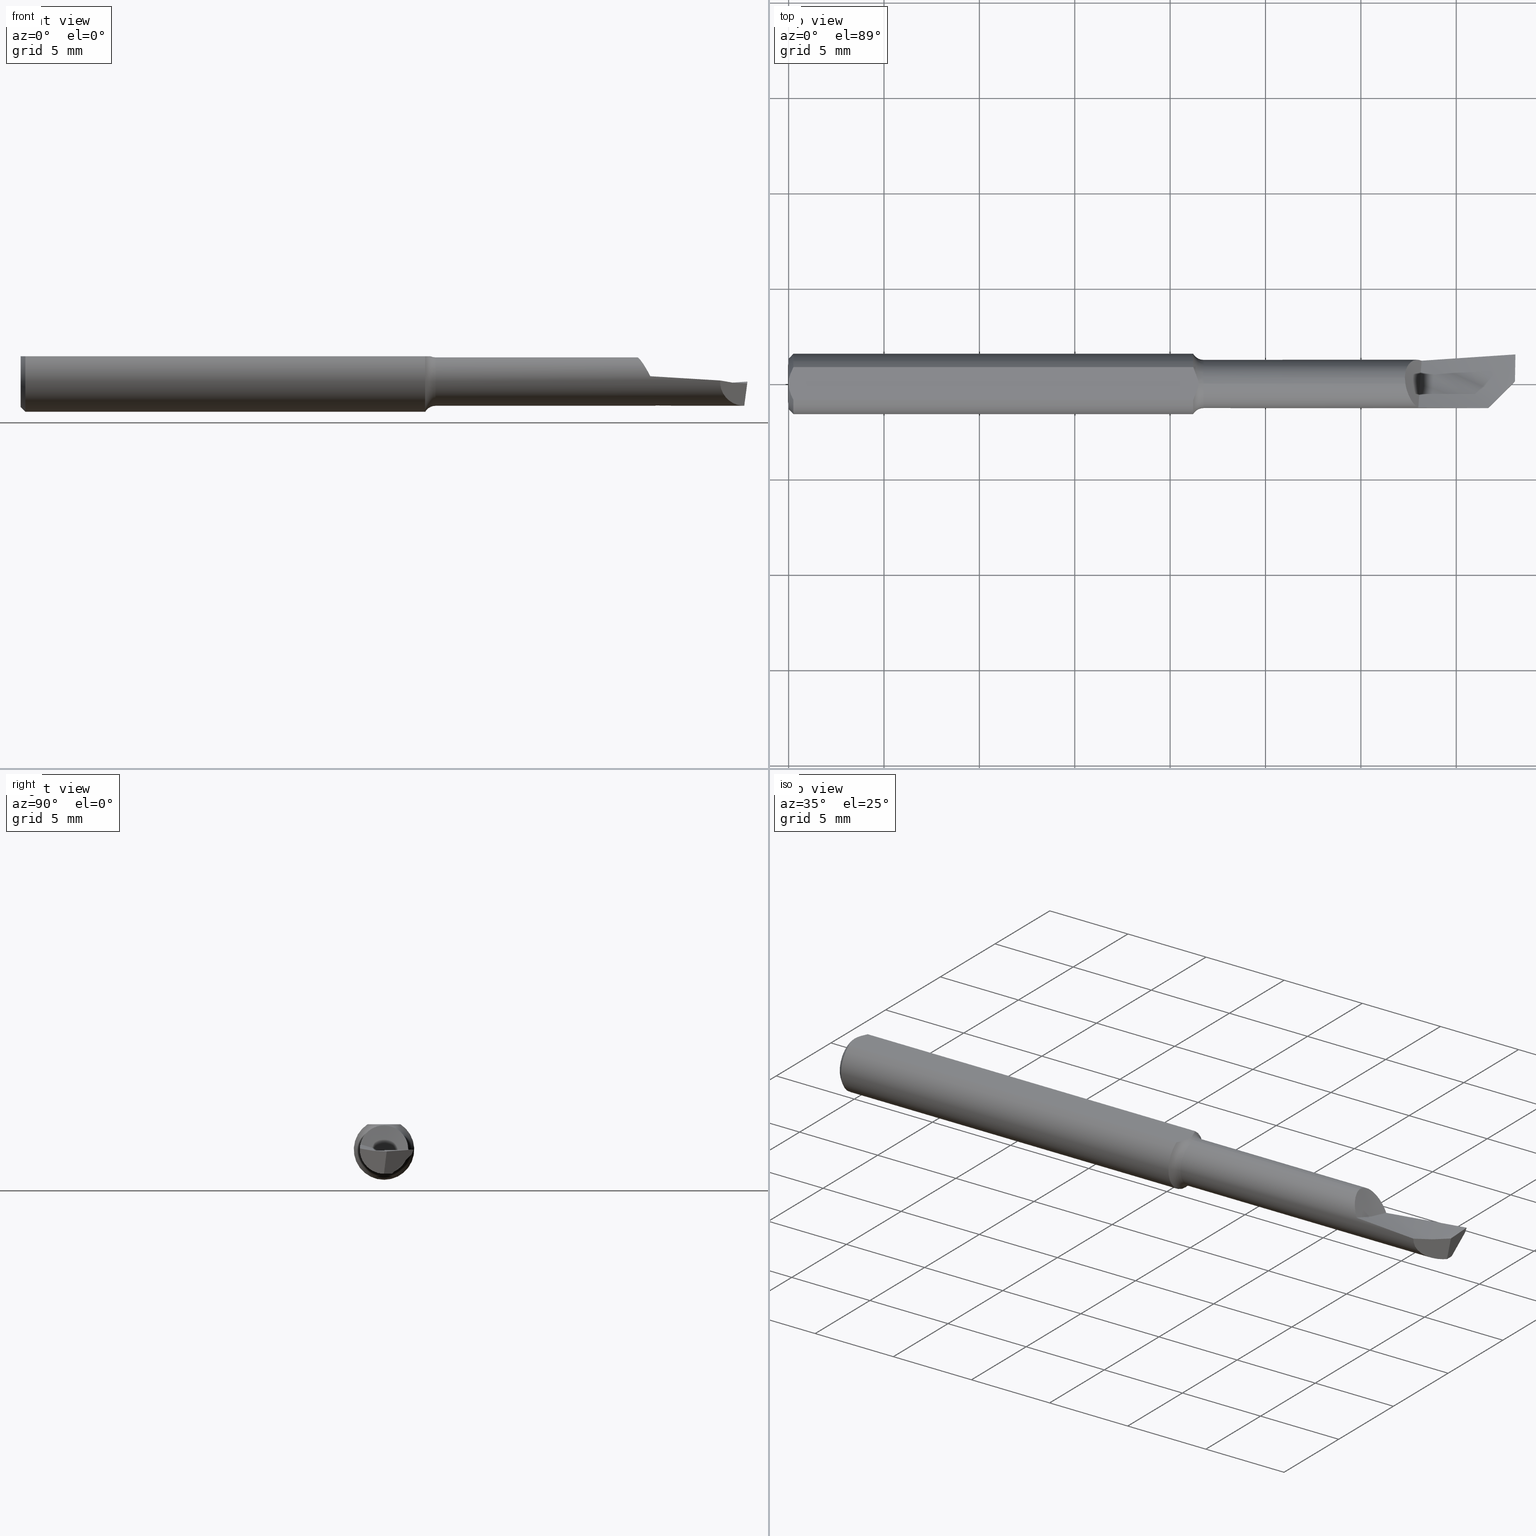
[diagram: canonical four-view strip — front | top / right | iso, engineering-drawing reading convention]
A machine part, canonical four-view strip (front | top / right | iso — engineering-drawing reading convention). The complete STEP part file that produces these views, byte-faithful:
ISO-10303-21;
HEADER;
FILE_DESCRIPTION (( 'STEP AP203' ),
    '1' );
FILE_NAME ('215907-HB120F.STEP',
    '2024-07-26T18:50:35',
    ( '' ),
    ( '' ),
    'SwSTEP 2.0',
    'SolidWorks 2024',
    '' );
FILE_SCHEMA (( 'CONFIG_CONTROL_DESIGN' ));
ENDSEC;

DATA;
#1 = FACE_OUTER_BOUND ( 'NONE', #709, .T. ) ;
#2 = VERTEX_POINT ( 'NONE', #699 ) ;
#3 = DIRECTION ( 'NONE',  ( 0.000000000000000000, 0.000000000000000000, -1.000000000000000000 ) ) ;
#4 = CARTESIAN_POINT ( 'NONE',  ( 0.01000000000000000021, 0.03386738844375223462, 0.05234999999999997988 ) ) ;
#5 = ORIENTED_EDGE ( 'NONE', *, *, #322, .T. ) ;
#6 = B_SPLINE_CURVE_WITH_KNOTS ( 'NONE', 3,
 ( #636, #210, #94, #329, #716, #707, #395, #160, #641, #100, #332, #579, #37, #399, #473, #406, #797, #721, #725 ),
 .UNSPECIFIED., .F., .F.,
 ( 4, 2, 2, 2, 2, 2, 1, 2, 2, 4 ),
 ( 0.000000000000000000, 0.2191422281775968484, 0.4382844563551937522, 0.4930700133995919443, 0.4999182080301445286, 0.5067664026606971683, 0.5204627919217991172, 0.5478555704440031260, 0.6574266845328092801, 0.8765689127104218104 ),
 .UNSPECIFIED. ) ;
#7 = DIRECTION ( 'NONE',  ( -1.000000000000000000, -0.000000000000000000, -0.000000000000000000 ) ) ;
#8 = CARTESIAN_POINT ( 'NONE',  ( 0.4257981336613052559, -6.651872531568761438E-08, -2.396628587553244755E-06 ) ) ;
#9 = ORIENTED_EDGE ( 'NONE', *, *, #608, .T. ) ;
#10 = CC_DESIGN_PERSON_AND_ORGANIZATION_ASSIGNMENT ( #77, #196, ( #446 ) ) ;
#11 = CARTESIAN_POINT ( 'NONE',  ( 1.449918502535253895, 0.01159635594620415586, -0.05000000000000006523 ) ) ;
#12 = CARTESIAN_POINT ( 'NONE',  ( 0.8459813947744948548, 0.000000000000000000, 0.05234999999999997988 ) ) ;
#13 = EDGE_LOOP ( 'NONE', ( #401, #119, #549, #573, #516, #612 ) ) ;
#14 = EDGE_CURVE ( 'NONE', #366, #439, #29, .T. ) ;
#15 = CARTESIAN_POINT ( 'NONE',  ( 1.309999999999999387, 0.04851636515732773991, -0.01287844342414591614 ) ) ;
#16 = SECURITY_CLASSIFICATION_LEVEL ( 'unclassified' ) ;
#17 = CARTESIAN_POINT ( 'NONE',  ( 1.271999999999999353, 0.01144693767717875482, 0.04863410044569864421 ) ) ;
#18 = ORIENTED_EDGE ( 'NONE', *, *, #180, .T. ) ;
#19 = CARTESIAN_POINT ( 'NONE',  ( 1.371696910058134877, -0.04974385689216415107, 0.006738323171264287530 ) ) ;
#20 = CARTESIAN_POINT ( 'NONE',  ( 1.495194514232144556, 0.02973981888379904209, -0.03691432926221542565 ) ) ;
#21 = VERTEX_POINT ( 'NONE', #33 ) ;
#22 = EDGE_CURVE ( 'NONE', #158, #39, #393, .T. ) ;
#23 = CARTESIAN_POINT ( 'NONE',  ( 1.359259259259259389, -0.1107540548774973571, 0.02886139084095134047 ) ) ;
#24 = ORIENTED_EDGE ( 'NONE', *, *, #467, .T. ) ;
#25 = B_SPLINE_SURFACE_WITH_KNOTS ( 'NONE', 1, 3, ( 
 ( #301, #257, #672, #129, #749, #552 ),
 ( #189, #676, #628, #132, #78, #8 ) ),
 .UNSPECIFIED., .F., .F., .F.,
 ( 2, 2 ),
 ( 4, 2, 4 ),
 ( 0.000000000000000000, 1.000000000000000000 ),
 ( 0.000000000000000000, 0.5000000000000000000, 1.000000000000000000 ),
 .UNSPECIFIED. ) ;
#26 = EDGE_CURVE ( 'NONE', #647, #570, #116, .T. ) ;
#27 = CARTESIAN_POINT ( 'NONE',  ( 1.359259259259259389, -0.03952263301441668458, -0.001352896635218390391 ) ) ;
#28 = DIRECTION ( 'NONE',  ( 0.000000000000000000, 0.000000000000000000, 1.000000000000000000 ) ) ;
#29 = CIRCLE ( 'NONE', #216, 0.04999999999999994726 ) ;
#30 = CC_DESIGN_APPROVAL ( #151, ( #173 ) ) ;
#31 = CARTESIAN_POINT ( 'NONE',  ( 1.443537192659749113, -0.04994767138989437971, 0.002286946157460104621 ) ) ;
#32 = CARTESIAN_POINT ( 'NONE',  ( 1.500000000000000222, 0.1123499999999999360, 0.009051054558355491400 ) ) ;
#33 = CARTESIAN_POINT ( 'NONE',  ( 0.000000000000000000, -5.426997665009263557E-18, 0.05234999999999997988 ) ) ;
#34 = CARTESIAN_POINT ( 'NONE',  ( 0.8436591603930051475, 0.01168548937459378163, 0.05234999999999997988 ) ) ;
#35 = B_SPLINE_CURVE_WITH_KNOTS ( 'NONE', 3,
 ( #319, #568, #274, #99, #521, #506 ),
 .UNSPECIFIED., .F., .F.,
 ( 4, 2, 4 ),
 ( 0.001820301466808375672, 0.002269751589838322255, 0.002719201712868268839 ),
 .UNSPECIFIED. ) ;
#36 = CC_DESIGN_DATE_AND_TIME_ASSIGNMENT ( #753, #250, ( #173 ) ) ;
#37 = CARTESIAN_POINT ( 'NONE',  ( 1.280775427694834878, -0.02637246049611337989, 0.04249233737715295972 ) ) ;
#38 = ORIENTED_EDGE ( 'NONE', *, *, #378, .T. ) ;
#39 = VERTEX_POINT ( 'NONE', #513 ) ;
#40 = CARTESIAN_POINT ( 'NONE',  ( 0.4257981336613052559, -0.08019896073073715104, 0.07864321377065933150 ) ) ;
#41 = CARTESIAN_POINT ( 'NONE',  ( 1.077777777777778834, 0.1033942727226855457, -0.04908222612340253782 ) ) ;
#42 = CARTESIAN_POINT ( 'NONE',  ( 1.309999999999975406, 0.04822846727627672081, -0.01386973430388482170 ) ) ;
#43 = ADVANCED_FACE ( 'NONE', ( #781 ), #55, .T. ) ;
#44 = CIRCLE ( 'NONE', #342, 0.02500000000000007425 ) ;
#45 = EDGE_LOOP ( 'NONE', ( #341, #231, #130, #701, #688 ) ) ;
#46 = LOCAL_TIME ( 11, 50, 35.00000000000000000, #164 ) ;
#47 = MECHANICAL_CONTEXT ( 'NONE', #440, 'mechanical' ) ;
#48 = DIRECTION ( 'NONE',  ( -1.000000000000000000, 0.000000000000000000, -0.000000000000000000 ) ) ;
#49 = CARTESIAN_POINT ( 'NONE',  ( 1.309999999999986287, 0.04214037634231888874, -0.02160766026466095016 ) ) ;
#50 = B_SPLINE_CURVE_WITH_KNOTS ( 'NONE', 3,
 ( #733, #365, #20, #247, #610, #569, #88 ),
 .UNSPECIFIED., .F., .F.,
 ( 4, 3, 4 ),
 ( 1.457340382744227116E-05, 0.0007332448227605268924, 0.001466534665384755997 ),
 .UNSPECIFIED. ) ;
#51 = CARTESIAN_POINT ( 'NONE',  ( 1.294453643555776967, 0.04971688587173973828, 0.005318045818284486588 ) ) ;
#52 = CARTESIAN_POINT ( 'NONE',  ( 1.310000000000000497, 0.04792461142857649958, -0.01425593277972206883 ) ) ;
#53 = CARTESIAN_POINT ( 'NONE',  ( 0.01000000000000000021, 0.000000000000000000, 0.000000000000000000 ) ) ;
#54 = CARTESIAN_POINT ( 'NONE',  ( 1.493328199247725419, 0.000000000000000000, -0.05000000000000007910 ) ) ;
#55 = CONICAL_SURFACE ( 'NONE', #458, 0.06235000000000000264, 0.7853981633974502774 ) ;
#56 = CARTESIAN_POINT ( 'NONE',  ( 1.493313476837149656, -0.001687021154528236481, -0.05000000000000007910 ) ) ;
#57 = PLANE ( 'NONE',  #431 ) ;
#58 = ORIENTED_EDGE ( 'NONE', *, *, #530, .F. ) ;
#59 = CARTESIAN_POINT ( 'NONE',  ( 1.298548844892721377, 0.05035006557924973092, -0.001138132953307220956 ) ) ;
#60 = CARTESIAN_POINT ( 'NONE',  ( 1.493326820018359369, -0.0001580440312843365918, -0.04999999999999998890 ) ) ;
#61 = ORIENTED_EDGE ( 'NONE', *, *, #463, .F. ) ;
#62 = CARTESIAN_POINT ( 'NONE',  ( 1.310000000000000053, 0.04842039915046413012, -0.01320887370388348914 ) ) ;
#63 = CALENDAR_DATE ( 2024, 26, 7 ) ;
#64 = CARTESIAN_POINT ( 'NONE',  ( 1.310000000000000497, 0.04695511755295009304, -0.01548815220876274303 ) ) ;
#65 = EDGE_LOOP ( 'NONE', ( #311, #374 ) ) ;
#66 = EDGE_CURVE ( 'NONE', #625, #79, #645, .T. ) ;
#67 = DIRECTION ( 'NONE',  ( 0.000000000000000000, -1.000000000000000000, 0.000000000000000000 ) ) ;
#68 = AXIS2_PLACEMENT_3D ( 'NONE', #739, #743, #188 ) ;
#69 = CALENDAR_DATE ( 2024, 26, 7 ) ;
#70 = CARTESIAN_POINT ( 'NONE',  ( 1.363095361444575326, 3.468166398206584357E-18, -0.05000000000000006523 ) ) ;
#71 = EDGE_LOOP ( 'NONE', ( #762, #419, #255, #586, #273, #217 ) ) ;
#72 = CARTESIAN_POINT ( 'NONE',  ( 1.499154818585930027, 0.05827079025844059124, -0.006689217931145088024 ) ) ;
#73 = CARTESIAN_POINT ( 'NONE',  ( 1.345406193661088823, -0.002635090598034378184, -0.05000000000000007910 ) ) ;
#74 = EDGE_CURVE ( 'NONE', #439, #366, #678, .T. ) ;
#75 = ORIENTED_EDGE ( 'NONE', *, *, #405, .F. ) ;
#76 = CARTESIAN_POINT ( 'NONE',  ( 0.8368034958400585310, 0.02820766334555257354, 0.05234999999999997294 ) ) ;
#77 = PERSON_AND_ORGANIZATION ( #161, #314 ) ;
#78 = CARTESIAN_POINT ( 'NONE',  ( 0.6048403056538548261, -0.0002814987939184153106, -0.01016525199079397826 ) ) ;
#79 = VERTEX_POINT ( 'NONE', #388 ) ;
#80 = CARTESIAN_POINT ( 'NONE',  ( 0.8350000000000000755, 7.635672792683742049E-18, -0.06234999999999995407 ) ) ;
#81 = PERSON_AND_ORGANIZATION ( #161, #314 ) ;
#82 = CARTESIAN_POINT ( 'NONE',  ( 1.272000000000000242, -0.03472696435416508520, 0.06302771654125709222 ) ) ;
#83 = AXIS2_PLACEMENT_3D ( 'NONE', #227, #291, #786 ) ;
#84 = ORIENTED_EDGE ( 'NONE', *, *, #783, .T. ) ;
#85 =( BOUNDED_SURFACE ( )  B_SPLINE_SURFACE ( 3, 2, ( 
 ( #91, #23, #389, #275, #770 ),
 ( #632, #27, #165, #214, #403 ),
 ( #260, #263, #464, #340, #512 ),
 ( #32, #766, #703, #41, #646 ) ),
 .UNSPECIFIED., .F., .F., .F. ) 
 B_SPLINE_SURFACE_WITH_KNOTS ( ( 4, 4 ),
 ( 3, 2, 3 ),
 ( 0.000000000000000000, 1.000000000000000000 ),
 ( 0.000000000000000000, 0.5000000000000000000, 1.000000000000000000 ),
 .UNSPECIFIED. ) 
 GEOMETRIC_REPRESENTATION_ITEM ( )  RATIONAL_B_SPLINE_SURFACE ( (
 ( 1.000000000000000000, 0.9848077530122080203, 1.000000000000000000, 0.9848077530122080203, 1.000000000000000000),
 ( 0.9829519941216796619, 0.9680187446498405013, 0.9829519941216796619, 0.9680187446498405013, 0.9829519941216796619),
 ( 0.9829519941216796619, 0.9680187446498405013, 0.9829519941216796619, 0.9680187446498405013, 0.9829519941216796619),
 ( 1.000000000000000000, 0.9848077530122080203, 1.000000000000000000, 0.9848077530122080203, 1.000000000000000000) ) ) 
 REPRESENTATION_ITEM ( '' )  SURFACE ( )  );
#86 =( NAMED_UNIT ( * ) PLANE_ANGLE_UNIT ( ) SI_UNIT ( $, .RADIAN. ) );
#87 = PRODUCT ( '215907-HB120F', '215907-HB120F', '', ( #47 ) ) ;
#88 = CARTESIAN_POINT ( 'NONE',  ( 1.498722776678427238, 0.05686810316114023628, -0.01010808968688459326 ) ) ;
#89 = ORIENTED_EDGE ( 'NONE', *, *, #550, .T. ) ;
#90 = CARTESIAN_POINT ( 'NONE',  ( 1.500000000000000222, -0.01539026225835066035, -0.08235000000000000653 ) ) ;
#91 = CARTESIAN_POINT ( 'NONE',  ( 1.500000000000000222, -0.1123499999999997279, 0.009051054558355354357 ) ) ;
#92 = CARTESIAN_POINT ( 'NONE',  ( 1.309999999999972742, 0.04156522573308535362, -0.02233867416924564114 ) ) ;
#93 = FACE_OUTER_BOUND ( 'NONE', #669, .T. ) ;
#94 = CARTESIAN_POINT ( 'NONE',  ( 1.292699085532490688, -0.04424179223687363383, 0.02397738318192297116 ) ) ;
#95 = CARTESIAN_POINT ( 'NONE',  ( 0.7838654224403138748, -0.002718624936347089922, -0.02165858660227658675 ) ) ;
#96 = TOROIDAL_SURFACE ( 'NONE', #510, 0.07500000000000002498, 0.02500000000000007425 ) ;
#97 = LOCAL_TIME ( 11, 50, 35.00000000000000000, #681 ) ;
#98 = CC_DESIGN_PERSON_AND_ORGANIZATION_ASSIGNMENT ( #246, #609, ( #145 ) ) ;
#99 = CARTESIAN_POINT ( 'NONE',  ( 0.004679365186781223734, -0.02325953974079656220, 0.05234999999999998682 ) ) ;
#100 = CARTESIAN_POINT ( 'NONE',  ( 1.281612001408798385, -0.02810700612716404700, 0.04135226487454118222 ) ) ;
#101 = CARTESIAN_POINT ( 'NONE',  ( 0.8565633369402790853, 0.000000000000000000, 0.000000000000000000 ) ) ;
#102 = ORIENTED_EDGE ( 'NONE', *, *, #764, .T. ) ;
#103 = CARTESIAN_POINT ( 'NONE',  ( 1.141932711220991603, 0.02528029437720196934, -0.03022296809258294067 ) ) ;
#104 = CARTESIAN_POINT ( 'NONE',  ( 1.272000000000000242, 0.01020335030451826469, 0.04894784614835758635 ) ) ;
#105 = CARTESIAN_POINT ( 'NONE',  ( 1.436660153457246736, 0.05740330285014537404, -0.005749705802023830081 ) ) ;
#106 = ADVANCED_FACE ( 'NONE', ( #591 ), #415, .T. ) ;
#107 = ORIENTED_EDGE ( 'NONE', *, *, #66, .F. ) ;
#108 = FACE_OUTER_BOUND ( 'NONE', #13, .T. ) ;
#109 = DIRECTION ( 'NONE',  ( 0.000000000000000000, 0.000000000000000000, 1.000000000000000000 ) ) ;
#110 = CIRCLE ( 'NONE', #191, 0.05234999999999996600 ) ;
#111 = ADVANCED_FACE ( 'NONE', ( #404 ), #96, .F. ) ;
#112 = CARTESIAN_POINT ( 'NONE',  ( 1.290459041779026705, 0.04864344607906900125, 0.01168911797366625413 ) ) ;
#113 = CARTESIAN_POINT ( 'NONE',  ( 1.310000000000000053, 0.04444097973027104354, -0.01868360539456887306 ) ) ;
#114 = CARTESIAN_POINT ( 'NONE',  ( 1.272000000000000242, 0.01393758859474910662, 0.04801815931669515397 ) ) ;
#115 = CARTESIAN_POINT ( 'NONE',  ( 1.500000000000000222, 0.06099999999999999173, 0.000000000000000000 ) ) ;
#116 = B_SPLINE_CURVE_WITH_KNOTS ( 'NONE', 3,
 ( #390, #455, #326, #580 ),
 .UNSPECIFIED., .F., .F.,
 ( 4, 4 ),
 ( 0.000000000000000000, 1.000000000000000000 ),
 .UNSPECIFIED. ) ;
#117 = CARTESIAN_POINT ( 'NONE',  ( 1.299660611757699202, -0.04875608591997589170, 0.01108350512085068407 ) ) ;
#118 = CARTESIAN_POINT ( 'NONE',  ( 1.363095361444575326, 3.468166398206584357E-18, -0.05000000000000006523 ) ) ;
#119 = ORIENTED_EDGE ( 'NONE', *, *, #634, .T. ) ;
#120 = CC_DESIGN_PERSON_AND_ORGANIZATION_ASSIGNMENT ( #81, #736, ( #145 ) ) ;
#121 = CIRCLE ( 'NONE', #277, 0.05000000000000000278 ) ;
#122 = CARTESIAN_POINT ( 'NONE',  ( 1.273228335987194759, 0.02612359200498260217, 0.04317630147463594192 ) ) ;
#123 = CARTESIAN_POINT ( 'NONE',  ( 1.443537192659749113, -0.04994767138989437971, 0.002286946157460104621 ) ) ;
#124 = ORIENTED_EDGE ( 'NONE', *, *, #135, .T. ) ;
#125 = CARTESIAN_POINT ( 'NONE',  ( 1.293750799828678577, 0.04958838834706445070, 0.006429515155052734771 ) ) ;
#126 = EDGE_CURVE ( 'NONE', #321, #79, #697, .T. ) ;
#127 = EDGE_LOOP ( 'NONE', ( #248, #163, #134, #738, #219, #482, #89, #581, #741 ) ) ;
#128 = CARTESIAN_POINT ( 'NONE',  ( 1.499046795534686671, 0.05792042633915464589, -0.007544060544137836354 ) ) ;
#129 = CARTESIAN_POINT ( 'NONE',  ( 0.7838654224403138748, 0.05348316671155828317, 0.005069215734397268872 ) ) ;
#130 = ORIENTED_EDGE ( 'NONE', *, *, #760, .T. ) ;
#131 = CARTESIAN_POINT ( 'NONE',  ( 1.499060726972478941, 0.005575862922834545765, -0.003710373355272122801 ) ) ;
#132 = CARTESIAN_POINT ( 'NONE',  ( 0.7838654224403138748, 0.008352801990762367956, -0.02024292803429541057 ) ) ;
#133 = APPROVAL_PERSON_ORGANIZATION ( #546, #228, #309 ) ;
#134 = ORIENTED_EDGE ( 'NONE', *, *, #14, .F. ) ;
#135 = EDGE_CURVE ( 'NONE', #39, #625, #755, .T. ) ;
#136 = DIRECTION ( 'NONE',  ( 0.000000000000000000, 0.000000000000000000, -1.000000000000000000 ) ) ;
#137 = CARTESIAN_POINT ( 'NONE',  ( 1.306773136038514416, 0.05566691420550872599, -0.01402476417826648003 ) ) ;
#138 = VERTEX_POINT ( 'NONE', #123 ) ;
#139 = CARTESIAN_POINT ( 'NONE',  ( 1.499370915116102543, 0.05897028604418656783, -0.004979034455883902914 ) ) ;
#140 = PERSON_AND_ORGANIZATION ( #161, #314 ) ;
#141 = CARTESIAN_POINT ( 'NONE',  ( 1.493328199247725419, 0.000000000000000000, -0.05000000000000007910 ) ) ;
#142 = VERTEX_POINT ( 'NONE', #413 ) ;
#143 = FACE_OUTER_BOUND ( 'NONE', #198, .T. ) ;
#144 = CIRCLE ( 'NONE', #418, 0.06235000000000000264 ) ;
#145 = PRODUCT_DEFINITION_FORMATION_WITH_SPECIFIED_SOURCE ( 'ANY', '', #87, .NOT_KNOWN. ) ;
#146 = VERTEX_POINT ( 'NONE', #60 ) ;
#147 = CARTESIAN_POINT ( 'NONE',  ( 0.4257981336613052559, -0.009884122193145427129, 0.004313754728955771119 ) ) ;
#148 = DIRECTION ( 'NONE',  ( -0.9925083585251990304, 0.008661489226064843575, 0.1218693434051474900 ) ) ;
#149 = CARTESIAN_POINT ( 'NONE',  ( 1.310000000000000275, -0.005650954687783303100, -0.04830108489563753743 ) ) ;
#150 = B_SPLINE_CURVE_WITH_KNOTS ( 'NONE', 3,
 ( #624, #207, #575, #507, #459, #712, #202, #104 ),
 .UNSPECIFIED., .F., .F.,
 ( 4, 2, 1, 1, 4 ),
 ( 0.8765689127104218104, 0.8919977986216192090, 0.9074266845328166076, 0.9382844563552112938, 1.000000000000000000 ),
 .UNSPECIFIED. ) ;
#151 = APPROVAL ( #782, 'UNSPECIFIED' ) ;
#152 = CARTESIAN_POINT ( 'NONE',  ( 1.500000000000000222, 0.05695973774164850290, -0.01000000000000000194 ) ) ;
#153 = DIRECTION ( 'NONE',  ( 0.000000000000000000, 0.000000000000000000, 1.000000000000000000 ) ) ;
#154 = ADVANCED_FACE ( 'NONE', ( #1 ), #724, .F. ) ;
#155 = CARTESIAN_POINT ( 'NONE',  ( 1.310000000000000053, 0.04832009609053197763, -0.01285178251456811117 ) ) ;
#156 = DIRECTION ( 'NONE',  ( 1.000000000000000000, 0.000000000000000000, 0.000000000000000000 ) ) ;
#157 = AXIS2_PLACEMENT_3D ( 'NONE', #515, #387, #698 ) ;
#158 = VERTEX_POINT ( 'NONE', #654 ) ;
#159 = CARTESIAN_POINT ( 'NONE',  ( 0.6048443618259665699, -0.01131556821552820620, -0.008482866153767794001 ) ) ;
#160 = CARTESIAN_POINT ( 'NONE',  ( 1.281755511638910994, -0.02839631503305559829, 0.04115414006569832750 ) ) ;
#161 = PERSON ( 'UNSPECIFIED', 'UNSPECIFIED', 'UNSPECIFIED', ('UNSPECIFIED'), ('UNSPECIFIED'), ('UNSPECIFIED') ) ;
#162 = CARTESIAN_POINT ( 'NONE',  ( 1.500000000000000222, 0.06099999999999999173, 0.000000000000000000 ) ) ;
#163 = ORIENTED_EDGE ( 'NONE', *, *, #383, .T. ) ;
#164 = COORDINATED_UNIVERSAL_TIME_OFFSET ( 8, 0, .BEHIND. ) ;
#165 = CARTESIAN_POINT ( 'NONE',  ( 1.218518518518519222, -0.03856223875658788824, 0.005446666494089702493 ) ) ;
#166 = ADVANCED_FACE ( 'NONE', ( #593 ), #283, .T. ) ;
#167 = CARTESIAN_POINT ( 'NONE',  ( 1.310000000000000497, -0.001621584450601945863, -0.04608548385690176830 ) ) ;
#168 = CARTESIAN_POINT ( 'NONE',  ( 1.289492521908184974, 0.04823663695637771254, 0.01325218206853705748 ) ) ;
#169 = DIRECTION ( 'NONE',  ( 0.000000000000000000, 0.000000000000000000, 1.000000000000000000 ) ) ;
#170 = CARTESIAN_POINT ( 'NONE',  ( 1.276190413930434087, 0.03408954215728249304, 0.03673638363495675824 ) ) ;
#171 = CARTESIAN_POINT ( 'NONE',  ( 1.280343423329403763, 0.04094107647577319847, 0.02875783306268285197 ) ) ;
#172 = FACE_OUTER_BOUND ( 'NONE', #45, .T. ) ;
#173 = PRODUCT_DEFINITION ( 'UNKNOWN', '', #145, #495 ) ;
#174 = ORIENTED_EDGE ( 'NONE', *, *, #668, .F. ) ;
#175 = CARTESIAN_POINT ( 'NONE',  ( 1.294619589611228694, 0.04974405281156731723, 0.005056162639037449155 ) ) ;
#176 = CARTESIAN_POINT ( 'NONE',  ( 1.310000000000000053, 0.04832009609053197763, -0.01285178251456811117 ) ) ;
#177 = ORIENTED_EDGE ( 'NONE', *, *, #66, .T. ) ;
#178 = CIRCLE ( 'NONE', #498, 0.06235000000000000264 ) ;
#179 = CARTESIAN_POINT ( 'NONE',  ( 1.281594342010526244, 0.04240060075204869772, 0.02651386867715513351 ) ) ;
#180 = EDGE_CURVE ( 'NONE', #602, #359, #652, .T. ) ;
#181 = DIRECTION ( 'NONE',  ( 0.000000000000000000, 0.000000000000000000, -1.000000000000000000 ) ) ;
#182 = ORIENTED_EDGE ( 'NONE', *, *, #519, .T. ) ;
#183 = CARTESIAN_POINT ( 'NONE',  ( 1.498830766050965213, 0.05721928788470592026, -0.009253579690633995797 ) ) ;
#184 = APPROVAL_DATE_TIME ( #485, #684 ) ;
#185 = CARTESIAN_POINT ( 'NONE',  ( 0.8368120315447669100, -0.02818087662329052390, 0.05234999999999998682 ) ) ;
#186 =( BOUNDED_CURVE ( )  B_SPLINE_CURVE ( 3, ( #233, #362, #658, #54 ),
 .UNSPECIFIED., .F., .T. ) 
 B_SPLINE_CURVE_WITH_KNOTS ( ( 4, 4 ),
 ( 0.06779174774989392416, 0.07095262296443062555 ),
 .UNSPECIFIED. ) 
 CURVE ( )  GEOMETRIC_REPRESENTATION_ITEM ( )  RATIONAL_B_SPLINE_CURVE ( ( 1.000000000000000000, 0.9999991674058297253, 0.9999991674058297253, 1.000000000000000000 ) ) 
 REPRESENTATION_ITEM ( '' )  );
#187 = VERTEX_POINT ( 'NONE', #4 ) ;
#188 = DIRECTION ( 'NONE',  ( 0.000000000000000000, 0.000000000000000000, 1.000000000000000000 ) ) ;
#189 = CARTESIAN_POINT ( 'NONE',  ( 1.500000000000000222, 0.06099999999999999173, 0.000000000000000000 ) ) ;
#190 = ORIENTED_EDGE ( 'NONE', *, *, #491, .T. ) ;
#191 = AXIS2_PLACEMENT_3D ( 'NONE', #468, #788, #169 ) ;
#192 = CARTESIAN_POINT ( 'NONE',  ( 0.8350000000000000755, 0.03386738844375222768, 0.05234999999999997988 ) ) ;
#193 = FACE_OUTER_BOUND ( 'NONE', #450, .T. ) ;
#194 = EDGE_LOOP ( 'NONE', ( #190, #605, #543, #776 ) ) ;
#195 = DIRECTION ( 'NONE',  ( 0.000000000000000000, -1.224646799147353207E-16, 1.000000000000000000 ) ) ;
#196 = PERSON_AND_ORGANIZATION_ROLE ( 'classification_officer' ) ;
#197 = CYLINDRICAL_SURFACE ( 'NONE', #626, 0.04999999999999998196 ) ;
#198 = EDGE_LOOP ( 'NONE', ( #414, #785, #5, #382, #475, #679, #620, #616, #479, #502 ) ) ;
#199 = CARTESIAN_POINT ( 'NONE',  ( 1.406425596318578553, 0.006454746538935473427, -0.05000000000000006523 ) ) ;
#200 = CARTESIAN_POINT ( 'NONE',  ( 0.000000000000000000, 0.03386738844375223462, 0.05234999999999997988 ) ) ;
#201 = VERTEX_POINT ( 'NONE', #422 ) ;
#202 = CARTESIAN_POINT ( 'NONE',  ( 1.272042441811594538, 0.008559122833725755705, 0.04929059197129349174 ) ) ;
#203 = EDGE_CURVE ( 'NONE', #2, #21, #110, .T. ) ;
#204 = VECTOR ( 'NONE', #594, 39.37007874015748854 ) ;
#205 = ORIENTED_EDGE ( 'NONE', *, *, #126, .T. ) ;
#206 = B_SPLINE_SURFACE_WITH_KNOTS ( 'NONE', 1, 3, ( 
 ( #451, #772, #103, #457, #159, #147 ),
 ( #90, #323, #635, #702, #398, #40 ) ),
 .UNSPECIFIED., .F., .F., .F.,
 ( 2, 2 ),
 ( 4, 2, 4 ),
 ( 0.000000000000000000, 1.000000000000000000 ),
 ( 0.000000000000000000, 0.5000000000000000000, 1.000000000000000000 ),
 .UNSPECIFIED. ) ;
#207 = CARTESIAN_POINT ( 'NONE',  ( 1.272849093676704513, 0.0003652632116984247434, 0.05000000938892967123 ) ) ;
#208 = DIRECTION ( 'NONE',  ( 0.000000000000000000, 0.000000000000000000, -1.000000000000000000 ) ) ;
#209 = EDGE_CURVE ( 'NONE', #146, #397, #186, .T. ) ;
#210 = CARTESIAN_POINT ( 'NONE',  ( 1.295961142263513555, -0.04716225745303896655, 0.01809801130944913364 ) ) ;
#211 = CARTESIAN_POINT ( 'NONE',  ( 1.310000000000000497, -0.003636269586237861340, -0.04719328434527057803 ) ) ;
#212 = ORIENTED_EDGE ( 'NONE', *, *, #783, .F. ) ;
#213 = CARTESIAN_POINT ( 'NONE',  ( 0.8453156692278123163, 0.005990347355133819086, 0.05234999999999997294 ) ) ;
#214 = CARTESIAN_POINT ( 'NONE',  ( 1.077777777777779056, -0.03760184449875909884, 0.01224622962339779429 ) ) ;
#215 = CARTESIAN_POINT ( 'NONE',  ( 1.141932711220991603, 0.02528029437720196934, -0.03022296809258294067 ) ) ;
#216 = AXIS2_PLACEMENT_3D ( 'NONE', #101, #269, #28 ) ;
#217 = ORIENTED_EDGE ( 'NONE', *, *, #606, .F. ) ;
#218 = DIRECTION ( 'NONE',  ( 0.000000000000000000, 0.000000000000000000, 1.000000000000000000 ) ) ;
#219 = ORIENTED_EDGE ( 'NONE', *, *, #405, .T. ) ;
#220 = ADVANCED_BREP_SHAPE_REPRESENTATION ( '215907-HB120F', ( #351, #355 ), #710 ) ;
#221 = CARTESIAN_POINT ( 'NONE',  ( 0.007185421074056372141, 0.02868573718286561436, 0.05234999999999997988 ) ) ;
#222 = CARTESIAN_POINT ( 'NONE',  ( 1.310000000000000497, 0.04802589670745725792, -0.01412719995154197716 ) ) ;
#223 = CARTESIAN_POINT ( 'NONE',  ( 1.282241067984225769, 0.04310296080646883882, 0.02536829013857555895 ) ) ;
#224 = FACE_OUTER_BOUND ( 'NONE', #234, .T. ) ;
#225 = AXIS2_PLACEMENT_3D ( 'NONE', #537, #48, #718 ) ;
#226 = CC_DESIGN_APPROVAL ( #228, ( #145 ) ) ;
#227 = CARTESIAN_POINT ( 'NONE',  ( 1.310000000000000275, 0.000000000000000000, 0.000000000000000000 ) ) ;
#228 = APPROVAL ( #361, 'UNSPECIFIED' ) ;
#229 = B_SPLINE_CURVE_WITH_KNOTS ( 'NONE', 3,
 ( #236, #731, #122, #170, #527, #480, #171, #179, #223, #410, #665, #597, #421, #728, #288, #168, #112, #284, #412, #125, #470, #51, #175, #59, #657, #794 ),
 .UNSPECIFIED., .F., .F.,
 ( 4, 2, 2, 2, 1, 1, 2, 2, 2, 2, 1, 1, 2, 2, 4 ),
 ( 0.000000000000000000, 0.2500000000000222600, 0.3750000000000348055, 0.4375000000000411338, 0.4687500000000461853, 0.4843750000000487943, 0.4921875000000501266, 0.5000000000000515143, 0.6250000000000524025, 0.6875000000000552891, 0.7187500000000567324, 0.7343750000000597300, 0.7421875000000589528, 0.7500000000000581757, 1.000000000000000000 ),
 .UNSPECIFIED. ) ;
#230 = PLANE ( 'NONE',  #638 ) ;
#231 = ORIENTED_EDGE ( 'NONE', *, *, #661, .T. ) ;
#232 = DIRECTION ( 'NONE',  ( 0.000000000000000000, 0.000000000000000000, -1.000000000000000000 ) ) ;
#233 = CARTESIAN_POINT ( 'NONE',  ( 1.493326820018359369, -0.0001580440312843365918, -0.04999999999999998890 ) ) ;
#234 = EDGE_LOOP ( 'NONE', ( #102, #567, #562 ) ) ;
#235 = ADVANCED_FACE ( 'NONE', ( #224 ), #411, .F. ) ;
#236 = CARTESIAN_POINT ( 'NONE',  ( 1.272000000000000242, 0.01393758859474910662, 0.04801815931669515397 ) ) ;
#237 = DIRECTION ( 'NONE',  ( 0.000000000000000000, 0.000000000000000000, 1.000000000000000000 ) ) ;
#238 = ORIENTED_EDGE ( 'NONE', *, *, #630, .T. ) ;
#239 = AXIS2_PLACEMENT_3D ( 'NONE', #289, #795, #478 ) ;
#240 = APPROVAL_PERSON_ORGANIZATION ( #279, #151, #715 ) ;
#241 = CARTESIAN_POINT ( 'NONE',  ( 1.300000000000000044, 0.000000000000000000, -0.05000000000000007910 ) ) ;
#242 = CARTESIAN_POINT ( 'NONE',  ( 1.272000000000000908, 0.06230596509581958625, 0.03912301437921556629 ) ) ;
#243 = ORIENTED_EDGE ( 'NONE', *, *, #634, .F. ) ;
#244 = EDGE_CURVE ( 'NONE', #321, #359, #769, .T. ) ;
#245 = CARTESIAN_POINT ( 'NONE',  ( 0.8565633369402790853, 0.000000000000000000, 0.07500000000000002498 ) ) ;
#246 = PERSON_AND_ORGANIZATION ( #161, #314 ) ;
#247 = CARTESIAN_POINT ( 'NONE',  ( 1.496061078170350722, 0.03643970456771692540, -0.03033317487351361655 ) ) ;
#248 = ORIENTED_EDGE ( 'NONE', *, *, #493, .F. ) ;
#249 = CYLINDRICAL_SURFACE ( 'NONE', #68, 0.04999999999999998196 ) ;
#250 = DATE_TIME_ROLE ( 'creation_date' ) ;
#251 = CARTESIAN_POINT ( 'NONE',  ( 1.272000000000000464, -0.003635904970815959005, 0.05135112770426197154 ) ) ;
#252 = ORIENTED_EDGE ( 'NONE', *, *, #409, .F. ) ;
#253 = APPROVAL_ROLE ( '' ) ;
#254 = DIRECTION ( 'NONE',  ( -1.000000000000000000, -0.000000000000000000, -0.000000000000000000 ) ) ;
#255 = ORIENTED_EDGE ( 'NONE', *, *, #630, .F. ) ;
#256 = CARTESIAN_POINT ( 'NONE',  ( 0.000000000000000000, -0.03386738844375224156, 0.05234999999999997988 ) ) ;
#257 = CARTESIAN_POINT ( 'NONE',  ( 1.320945059964654611, 0.06415531090981788087, 0.03374619952854736316 ) ) ;
#258 = EDGE_LOOP ( 'NONE', ( #205, #334, #796 ) ) ;
#259 = EDGE_CURVE ( 'NONE', #2, #142, #595, .T. ) ;
#260 = CARTESIAN_POINT ( 'NONE',  ( 1.500000000000000000, 0.03809952085550591394, -0.008070870114108811763 ) ) ;
#261 = VERTEX_POINT ( 'NONE', #118 ) ;
#262 = CARTESIAN_POINT ( 'NONE',  ( 1.493326820018359369, -0.0001580440312843365918, -0.04999999999999998890 ) ) ;
#263 = CARTESIAN_POINT ( 'NONE',  ( 1.359259259259259389, 0.03667640869659492125, -0.01478884359299935912 ) ) ;
#264 = VECTOR ( 'NONE', #556, 39.37007874015748143 ) ;
#265 = CARTESIAN_POINT ( 'NONE',  ( 1.310000000000000497, 0.02716962059800860987, -0.03025427423309719546 ) ) ;
#266 = FACE_OUTER_BOUND ( 'NONE', #194, .T. ) ;
#267 = CARTESIAN_POINT ( 'NONE',  ( 1.500000000000000222, 0.06099999999999999173, 0.000000000000000000 ) ) ;
#268 = ADVANCED_FACE ( 'NONE', ( #791 ), #230, .F. ) ;
#269 = DIRECTION ( 'NONE',  ( -1.000000000000000000, -0.000000000000000000, -0.000000000000000000 ) ) ;
#270 = DIRECTION ( 'NONE',  ( -0.000000000000000000, 0.000000000000000000, 1.000000000000000000 ) ) ;
#271 = DIRECTION ( 'NONE',  ( 0.000000000000000000, 0.000000000000000000, 1.000000000000000000 ) ) ;
#272 = CARTESIAN_POINT ( 'NONE',  ( 1.320934735650117542, 0.05083193738099019837, -0.01625473766625730801 ) ) ;
#273 = ORIENTED_EDGE ( 'NONE', *, *, #467, .F. ) ;
#274 = CARTESIAN_POINT ( 'NONE',  ( 0.001055043921633255690, -0.01186408073210960291, 0.05234999999999997988 ) ) ;
#275 = CARTESIAN_POINT ( 'NONE',  ( 1.077777777777778834, -0.09420359105850152626, 0.06500095372196058874 ) ) ;
#276 = CARTESIAN_POINT ( 'NONE',  ( 1.309999999999972742, 0.04156522573308535362, -0.02233867416924564114 ) ) ;
#277 = AXIS2_PLACEMENT_3D ( 'NONE', #447, #650, #271 ) ;
#278 = VERTEX_POINT ( 'NONE', #726 ) ;
#279 = PERSON_AND_ORGANIZATION ( #161, #314 ) ;
#280 = DIRECTION ( 'NONE',  ( 1.000000000000000000, 0.000000000000000000, 0.000000000000000000 ) ) ;
#281 = CARTESIAN_POINT ( 'NONE',  ( 1.141932711220991603, 0.03417981684127054803, -0.02348656821621746688 ) ) ;
#282 = CARTESIAN_POINT ( 'NONE',  ( 1.443537192659749113, -0.04994767138989437971, 0.002286946157460104621 ) ) ;
#283 = CYLINDRICAL_SURFACE ( 'NONE', #328, 0.06235000000000000264 ) ;
#284 = CARTESIAN_POINT ( 'NONE',  ( 1.291997436590439863, 0.04914947599330119626, 0.009221393113098667188 ) ) ;
#285 = CARTESIAN_POINT ( 'NONE',  ( 0.01000000000000000021, 0.000000000000000000, -0.06235000000000000264 ) ) ;
#286 = ADVANCED_FACE ( 'NONE', ( #172 ), #298, .F. ) ;
#287 = VECTOR ( 'NONE', #535, 39.37007874015748143 ) ;
#288 = CARTESIAN_POINT ( 'NONE',  ( 1.286770192305953353, 0.04686926652053527431, 0.01768744621428406869 ) ) ;
#289 = CARTESIAN_POINT ( 'NONE',  ( 0.8565633369402790853, 0.000000000000000000, 0.000000000000000000 ) ) ;
#290 = EDGE_LOOP ( 'NONE', ( #692, #84, #756, #302, #536, #38 ) ) ;
#291 = DIRECTION ( 'NONE',  ( 1.000000000000000000, 0.000000000000000000, 0.000000000000000000 ) ) ;
#292 = DIRECTION ( 'NONE',  ( 0.000000000000000000, -1.036675771730518732E-16, 1.000000000000000000 ) ) ;
#293 = ORIENTED_EDGE ( 'NONE', *, *, #26, .T. ) ;
#294 = ADVANCED_FACE ( 'NONE', ( #663 ), #57, .T. ) ;
#295 = CARTESIAN_POINT ( 'NONE',  ( 1.306287550036676626, 0.04826060256744394567, -0.01307341729721895295 ) ) ;
#296 = DIRECTION ( 'NONE',  ( -1.000000000000000000, -0.000000000000000000, -0.000000000000000000 ) ) ;
#297 = ORIENTED_EDGE ( 'NONE', *, *, #606, .T. ) ;
#298 = TOROIDAL_SURFACE ( 'NONE', #239, 0.07500000000000002498, 0.02500000000000007425 ) ;
#299 = EDGE_CURVE ( 'NONE', #553, #201, #384, .T. ) ;
#300 = DIRECTION ( 'NONE',  ( 0.000000000000000000, 0.000000000000000000, 1.000000000000000000 ) ) ;
#301 = CARTESIAN_POINT ( 'NONE',  ( 1.500000000000000222, 0.06099999999999999173, 0.05000000000000000278 ) ) ;
#302 = ORIENTED_EDGE ( 'NONE', *, *, #327, .F. ) ;
#303 = CARTESIAN_POINT ( 'NONE',  ( 1.499580547001924558, 0.05964840474630154349, -0.003319979968430643649 ) ) ;
#304 = COORDINATED_UNIVERSAL_TIME_OFFSET ( 8, 0, .BEHIND. ) ;
#305 = LINE ( 'NONE', #200, #264 ) ;
#306 = ORIENTED_EDGE ( 'NONE', *, *, #484, .F. ) ;
#307 = CC_DESIGN_PERSON_AND_ORGANIZATION_ASSIGNMENT ( #339, #525, ( #87 ) ) ;
#308 = CARTESIAN_POINT ( 'NONE',  ( 1.443537192659749113, -0.04994767138989437971, 0.002286946157460104621 ) ) ;
#309 = APPROVAL_ROLE ( '' ) ;
#310 = CARTESIAN_POINT ( 'NONE',  ( 1.272000000000000242, 0.01020335030451826469, 0.04894784614835758635 ) ) ;
#311 = ORIENTED_EDGE ( 'NONE', *, *, #409, .T. ) ;
#312 = CONICAL_SURFACE ( 'NONE', #522, 0.06235000000000000264, 0.7853981633974502774 ) ;
#313 = CARTESIAN_POINT ( 'NONE',  ( 1.499244874835158781, 0.02406214188587658606, -0.003524521965467473841 ) ) ;
#314 = ORGANIZATION ( 'UNSPECIFIED', 'UNSPECIFIED', '' ) ;
#315 = APPROVAL_STATUS ( 'not_yet_approved' ) ;
#316 = CARTESIAN_POINT ( 'NONE',  ( 0.8565633369402790853, 0.000000000000000000, 0.04999999999999994726 ) ) ;
#317 = ORIENTED_EDGE ( 'NONE', *, *, #700, .F. ) ;
#318 = EDGE_CURVE ( 'NONE', #338, #363, #50, .T. ) ;
#319 = CARTESIAN_POINT ( 'NONE',  ( 0.000000000000000000, -5.426997665009263557E-18, 0.05234999999999997988 ) ) ;
#320 = CARTESIAN_POINT ( 'NONE',  ( 1.500000000000000222, 0.06099999999999999173, 0.000000000000000000 ) ) ;
#321 = VERTEX_POINT ( 'NONE', #320 ) ;
#322 = EDGE_CURVE ( 'NONE', #158, #261, #742, .T. ) ;
#323 = CARTESIAN_POINT ( 'NONE',  ( 1.320933092725994573, -0.04750251535408022557, -0.07824890211669531526 ) ) ;
#324 = CARTESIAN_POINT ( 'NONE',  ( 1.272899168750858401, -1.934727752666974666E-06, 0.05000828005493417050 ) ) ;
#325 = ADVANCED_FACE ( 'NONE', ( #193 ), #358, .T. ) ;
#326 = CARTESIAN_POINT ( 'NONE',  ( 1.301901999064766668, -0.01746344439931329581, -0.0004220525407220269585 ) ) ;
#327 = EDGE_CURVE ( 'NONE', #664, #648, #509, .T. ) ;
#328 = AXIS2_PLACEMENT_3D ( 'NONE', #667, #296, #237 ) ;
#329 = CARTESIAN_POINT ( 'NONE',  ( 1.287149769551636735, -0.03773751753160826256, 0.03328859947692325294 ) ) ;
#330 = CIRCLE ( 'NONE', #732, 0.06235000000000000264 ) ;
#331 = DIRECTION ( 'NONE',  ( -1.000000000000000000, -0.000000000000000000, -0.000000000000000000 ) ) ;
#332 = CARTESIAN_POINT ( 'NONE',  ( 1.281497475429196342, -0.02787422981254822352, 0.04150984525899750754 ) ) ;
#333 = CARTESIAN_POINT ( 'NONE',  ( 1.500000000000000222, 0.06099999999999999173, 0.000000000000000000 ) ) ;
#334 = ORIENTED_EDGE ( 'NONE', *, *, #576, .T. ) ;
#335 = CARTESIAN_POINT ( 'NONE',  ( 1.463038708143847400, -0.03044615590579615241, -0.04990401287507313655 ) ) ;
#336 = CARTESIAN_POINT ( 'NONE',  ( 1.499060726972478941, 0.005575862922834545765, -0.003710373355272122801 ) ) ;
#337 = CARTESIAN_POINT ( 'NONE',  ( 1.373328219576852582, 0.05299531181455020834, -0.01037045355577420093 ) ) ;
#338 = VERTEX_POINT ( 'NONE', #744 ) ;
#339 = PERSON_AND_ORGANIZATION ( #161, #314 ) ;
#340 = CARTESIAN_POINT ( 'NONE',  ( 1.077777777777779056, 0.02940646820381983412, -0.02644103775337865517 ) ) ;
#341 = ORIENTED_EDGE ( 'NONE', *, *, #608, .F. ) ;
#342 = AXIS2_PLACEMENT_3D ( 'NONE', #245, #67, #441 ) ;
#343 = ADVANCED_FACE ( 'NONE', ( #426 ), #25, .T. ) ;
#344 = DIMENSIONAL_EXPONENTS ( 1.000000000000000000, 0.000000000000000000, 0.000000000000000000, 0.000000000000000000, 0.000000000000000000, 0.000000000000000000, 0.000000000000000000 ) ;
#345 = DIRECTION ( 'NONE',  ( 0.000000000000000000, 8.881784197001252323E-15, 1.000000000000000000 ) ) ;
#346 = CARTESIAN_POINT ( 'NONE',  ( 1.300000000000000044, 0.000000000000000000, -0.05000000000000007910 ) ) ;
#347 = DIRECTION ( 'NONE',  ( 1.000000000000000000, 0.000000000000000000, 0.000000000000000000 ) ) ;
#348 = EDGE_CURVE ( 'NONE', #146, #443, #490, .T. ) ;
#349 = DIRECTION ( 'NONE',  ( -0.7071067811865489050, -0.7071067811865461294, 0.000000000000000000 ) ) ;
#350 =( BOUNDED_CURVE ( )  B_SPLINE_CURVE ( 2, ( #308, #19, #607 ),
 .UNSPECIFIED., .F., .T. ) 
 B_SPLINE_CURVE_WITH_KNOTS ( ( 3, 3 ),
 ( 0.1010291644753896767, 0.3552042555019970793 ),
 .UNSPECIFIED. ) 
 CURVE ( )  GEOMETRIC_REPRESENTATION_ITEM ( )  RATIONAL_B_SPLINE_CURVE ( ( 0.9848445176714386573, 0.9802899546835003308, 0.9835064192122493498 ) ) 
 REPRESENTATION_ITEM ( '' )  );
#351 = MANIFOLD_SOLID_BREP ( 'Flat', #662 ) ;
#352 = CARTESIAN_POINT ( 'NONE',  ( -7.517250668112770884E-16, 0.005954997531773991229, 0.05234999999999998682 ) ) ;
#353 = DIRECTION ( 'NONE',  ( 1.000000000000000000, 0.000000000000000000, 0.000000000000000000 ) ) ;
#354 = VERTEX_POINT ( 'NONE', #754 ) ;
#355 = AXIS2_PLACEMENT_3D ( 'NONE', #706, #153, #639 ) ;
#356 = CARTESIAN_POINT ( 'NONE',  ( 1.499060726972478941, 0.005575862922834545765, -0.003710373355272122801 ) ) ;
#357 = CARTESIAN_POINT ( 'NONE',  ( 1.373365688489596392, 0.05312941210585368779, -0.009567210660196081434 ) ) ;
#358 = B_SPLINE_SURFACE_WITH_KNOTS ( 'NONE', 1, 3, ( 
 ( #82, #251, #566, #242 ),
 ( #486, #429, #737, #137 ) ),
 .UNSPECIFIED., .F., .F., .F.,
 ( 2, 2 ),
 ( 4, 4 ),
 ( 0.000000000000000000, 1.000000000000000000 ),
 ( 0.008803043226517018663, 0.01135582505241971261 ),
 .UNSPECIFIED. ) ;
#359 = VERTEX_POINT ( 'NONE', #370 ) ;
#360 = CARTESIAN_POINT ( 'NONE',  ( 1.363095361444575326, 3.468166398206584357E-18, -0.05000000000000006523 ) ) ;
#361 = APPROVAL_STATUS ( 'not_yet_approved' ) ;
#362 = CARTESIAN_POINT ( 'NONE',  ( 1.493327289986609019, -0.0001053624852201671719, -0.04999991674056563501 ) ) ;
#363 = VERTEX_POINT ( 'NONE', #682 ) ;
#364 = CARTESIAN_POINT ( 'NONE',  ( 1.499262858468285220, 0.05862074363805204469, -0.005834209067119388095 ) ) ;
#365 = CARTESIAN_POINT ( 'NONE',  ( 1.494330862874430066, 0.02301437643263124985, -0.04346994712089356783 ) ) ;
#366 = VERTEX_POINT ( 'NONE', #316 ) ;
#367 = CIRCLE ( 'NONE', #83, 0.04999999999999998196 ) ;
#368 = CARTESIAN_POINT ( 'NONE',  ( 1.309999999999972742, 0.04156522573308535362, -0.02233867416924564114 ) ) ;
#369 = PERSON_AND_ORGANIZATION_ROLE ( 'creator' ) ;
#370 = CARTESIAN_POINT ( 'NONE',  ( 1.309999999999999387, 0.04851636515732773991, -0.01287844342414591614 ) ) ;
#371 = ORIENTED_EDGE ( 'NONE', *, *, #550, .F. ) ;
#372 = LINE ( 'NONE', #256, #763 ) ;
#373 = CARTESIAN_POINT ( 'NONE',  ( 1.272000000000000242, 0.01393758859474910662, 0.04801815931669515397 ) ) ;
#374 = ORIENTED_EDGE ( 'NONE', *, *, #203, .T. ) ;
#375 = CARTESIAN_POINT ( 'NONE',  ( 1.499790242123503647, 0.06032497711778037064, -0.001660300585971637502 ) ) ;
#376 = COORDINATED_UNIVERSAL_TIME_OFFSET ( 8, 0, .BEHIND. ) ;
#377 = DIRECTION ( 'NONE',  ( 0.1220122463319276429, 0.1220122463319271433, 0.9850005195379716305 ) ) ;
#378 = EDGE_CURVE ( 'NONE', #714, #187, #305, .T. ) ;
#379 = EDGE_LOOP ( 'NONE', ( #643, #427, #124, #177, #727 ) ) ;
#380 =( BOUNDED_CURVE ( )  B_SPLINE_CURVE ( 3, ( #31, #758, #335, #262 ),
 .UNSPECIFIED., .F., .F. ) 
 B_SPLINE_CURVE_WITH_KNOTS ( ( 4, 4 ),
 ( 6.237430420985751844, 7.850820755980532972 ),
 .UNSPECIFIED. ) 
 CURVE ( )  GEOMETRIC_REPRESENTATION_ITEM ( )  RATIONAL_B_SPLINE_CURVE ( ( 1.000000000000000000, 0.7945922073802837993, 0.7945922073802837993, 1.000000000000000000 ) ) 
 REPRESENTATION_ITEM ( '' )  );
#381 = CARTESIAN_POINT ( 'NONE',  ( 0.8459813947744764251, -0.006046836617477542065, 0.05234999999999997988 ) ) ;
#382 = ORIENTED_EDGE ( 'NONE', *, *, #668, .T. ) ;
#383 = EDGE_CURVE ( 'NONE', #278, #439, #561, .T. ) ;
#384 = B_SPLINE_CURVE_WITH_KNOTS ( 'NONE', 3,
 ( #373, #615, #17, #310 ),
 .UNSPECIFIED., .F., .F.,
 ( 4, 4 ),
 ( 0.000000000000000000, 1.000000000000000000 ),
 .UNSPECIFIED. ) ;
#385 = CARTESIAN_POINT ( 'NONE',  ( 0.8459813947744948548, 0.000000000000000000, 0.05234999999999997988 ) ) ;
#386 = ADVANCED_FACE ( 'NONE', ( #143 ), #197, .T. ) ;
#387 = DIRECTION ( 'NONE',  ( -1.000000000000000000, -0.000000000000000000, -0.000000000000000000 ) ) ;
#388 = CARTESIAN_POINT ( 'NONE',  ( 1.309999999999975406, 0.04822846727627672081, -0.01386973430388482170 ) ) ;
#389 = CARTESIAN_POINT ( 'NONE',  ( 1.218518518518519222, -0.1024788229679994139, 0.04693117228145596981 ) ) ;
#390 = CARTESIAN_POINT ( 'NONE',  ( 1.306287550036676626, 0.04826060256744394567, -0.01307341729721895295 ) ) ;
#391 = EDGE_LOOP ( 'NONE', ( #734, #505, #24, #212 ) ) ;
#392 = APPLICATION_PROTOCOL_DEFINITION ( 'international standard', 'config_control_design', 1994, #440 ) ;
#393 = B_SPLINE_CURVE_WITH_KNOTS ( 'NONE', 3,
 ( #768, #149, #211, #167, #396, #265, #92 ),
 .UNSPECIFIED., .F., .F.,
 ( 4, 3, 4 ),
 ( 0.001169591675574719204, 0.001344788353825811505, 0.002596627436074621514 ),
 .UNSPECIFIED. ) ;
#394 = CIRCLE ( 'NONE', #588, 0.02500000000000007425 ) ;
#395 = CARTESIAN_POINT ( 'NONE',  ( 1.282193181959237815, -0.02926987638345528164, 0.04054833245315252188 ) ) ;
#396 = CARTESIAN_POINT ( 'NONE',  ( 1.310000000000000497, 0.01277401720344453935, -0.03816987746231648160 ) ) ;
#397 = VERTEX_POINT ( 'NONE', #141 ) ;
#398 = CARTESIAN_POINT ( 'NONE',  ( 0.6048983724169688658, -0.1014413605301318494, 0.04710220004854821091 ) ) ;
#399 = CARTESIAN_POINT ( 'NONE',  ( 1.280315083923952768, -0.02535752685491816580, 0.04309998557854280432 ) ) ;
#400 = CARTESIAN_POINT ( 'NONE',  ( 0.8565633369402790853, 0.000000000000000000, 0.000000000000000000 ) ) ;
#401 = ORIENTED_EDGE ( 'NONE', *, *, #670, .T. ) ;
#402 = CALENDAR_DATE ( 2024, 26, 7 ) ;
#403 = CARTESIAN_POINT ( 'NONE',  ( 0.9370370370370384450, -0.03437378154559433269, 0.01830725473886479424 ) ) ;
#404 = FACE_OUTER_BOUND ( 'NONE', #435, .T. ) ;
#405 = EDGE_CURVE ( 'NONE', #423, #201, #150, .T. ) ;
#406 = CARTESIAN_POINT ( 'NONE',  ( 1.277763235152240995, -0.01916188622190297119, 0.04627695561704760208 ) ) ;
#407 = CARTESIAN_POINT ( 'NONE',  ( 1.429357864376268772, -0.06412699967337470719, -0.04999999999999998890 ) ) ;
#408 = VECTOR ( 'NONE', #617, 39.37007874015748143 ) ;
#409 = EDGE_CURVE ( 'NONE', #21, #2, #720, .T. ) ;
#410 = CARTESIAN_POINT ( 'NONE',  ( 1.283032798228199711, 0.04387149268217474529, 0.02399267082055648453 ) ) ;
#411 = PLANE ( 'NONE',  #745 ) ;
#412 = CARTESIAN_POINT ( 'NONE',  ( 1.292788787747433998, 0.04937640292941194303, 0.007956826050339798478 ) ) ;
#413 = CARTESIAN_POINT ( 'NONE',  ( 0.01000000000000000021, 0.000000000000000000, -0.06235000000000000264 ) ) ;
#414 = ORIENTED_EDGE ( 'NONE', *, *, #383, .F. ) ;
#415 = B_SPLINE_SURFACE_WITH_KNOTS ( 'NONE', 1, 3, ( 
 ( #333, #272, #281, #518, #774, #465 ),
 ( #152, #637, #215, #95, #461, #713 ) ),
 .UNSPECIFIED., .F., .F., .F.,
 ( 2, 2 ),
 ( 4, 2, 4 ),
 ( 0.000000000000000000, 1.000000000000000000 ),
 ( 0.000000000000000000, 0.5000000000000000000, 1.000000000000000000 ),
 .UNSPECIFIED. ) ;
#416 = CARTESIAN_POINT ( 'NONE',  ( 0.001063697276021675735, 0.01189177144351694949, 0.05234999999999998682 ) ) ;
#417 = CARTESIAN_POINT ( 'NONE',  ( 1.310000000000000053, 0.04598562401509551090, -0.01672037190355787559 ) ) ;
#418 = AXIS2_PLACEMENT_3D ( 'NONE', #621, #7, #300 ) ;
#419 = ORIENTED_EDGE ( 'NONE', *, *, #661, .F. ) ;
#420 = CC_DESIGN_APPROVAL ( #684, ( #446 ) ) ;
#421 = CARTESIAN_POINT ( 'NONE',  ( 1.283765447479124688, 0.04453257308422155225, 0.02273489903855676827 ) ) ;
#422 = CARTESIAN_POINT ( 'NONE',  ( 1.272000000000000242, 0.01020335030451826469, 0.04894784614835758635 ) ) ;
#423 = VERTEX_POINT ( 'NONE', #324 ) ;
#424 = DIRECTION ( 'NONE',  ( -0.000000000000000000, 1.000000000000000000, 1.224646799147353207E-16 ) ) ;
#425 = PERSON_AND_ORGANIZATION ( #161, #314 ) ;
#426 = FACE_OUTER_BOUND ( 'NONE', #258, .T. ) ;
#427 = ORIENTED_EDGE ( 'NONE', *, *, #640, .T. ) ;
#428 = CARTESIAN_POINT ( 'NONE',  ( 0.8565633369402790853, 9.184850993605151827E-18, -0.07500000000000002498 ) ) ;
#429 = CARTESIAN_POINT ( 'NONE',  ( 1.301809754096090233, -0.01860992788799163689, -0.0004286093161396297628 ) ) ;
#430 = ORIENTED_EDGE ( 'NONE', *, *, #555, .F. ) ;
#431 = AXIS2_PLACEMENT_3D ( 'NONE', #601, #292, #481 ) ;
#432 = EDGE_CURVE ( 'NONE', #647, #602, #623, .T. ) ;
#433 = CARTESIAN_POINT ( 'NONE',  ( 0.8350000000000000755, 0.03386738844375222768, 0.05234999999999997988 ) ) ;
#434 = CARTESIAN_POINT ( 'NONE',  ( 1.327708185014136122, -0.005192571617713454164, -0.04979257458020232285 ) ) ;
#435 = EDGE_LOOP ( 'NONE', ( #238, #9, #540, #317, #746 ) ) ;
#436 = CARTESIAN_POINT ( 'NONE',  ( 1.372902404703095547, 0.04709132456899228769, -0.01948917356754660546 ) ) ;
#437 = APPROVAL_DATE_TIME ( #649, #151 ) ;
#438 = DIRECTION ( 'NONE',  ( -1.000000000000000000, -0.000000000000000000, -0.000000000000000000 ) ) ;
#439 = VERTEX_POINT ( 'NONE', #572 ) ;
#440 = APPLICATION_CONTEXT ( 'configuration controlled 3d designs of mechanical parts and assemblies' ) ;
#441 = DIRECTION ( 'NONE',  ( 0.000000000000000000, 0.000000000000000000, -1.000000000000000000 ) ) ;
#442 = CARTESIAN_POINT ( 'NONE',  ( 0.000000000000000000, 0.000000000000000000, 0.000000000000000000 ) ) ;
#443 = VERTEX_POINT ( 'NONE', #336 ) ;
#444 = AXIS2_PLACEMENT_3D ( 'NONE', #346, #539, #547 ) ;
#445 = LINE ( 'NONE', #517, #723 ) ;
#446 = SECURITY_CLASSIFICATION ( '', '', #16 ) ;
#447 = CARTESIAN_POINT ( 'NONE',  ( 1.310000000000000275, 0.000000000000000000, 0.000000000000000000 ) ) ;
#448 = ADVANCED_FACE ( 'NONE', ( #108 ), #779, .F. ) ;
#449 = ORIENTED_EDGE ( 'NONE', *, *, #318, .F. ) ;
#450 = EDGE_LOOP ( 'NONE', ( #306, #462, #371, #492, #75 ) ) ;
#451 = CARTESIAN_POINT ( 'NONE',  ( 1.500000000000000222, 0.05695973774164850290, -0.01000000000000000021 ) ) ;
#452 = CARTESIAN_POINT ( 'NONE',  ( 1.308143505835337672, 0.04829060363433861774, -0.01296266816919170589 ) ) ;
#453 = CARTESIAN_POINT ( 'NONE',  ( 1.309999999999999387, 0.04812718199002458813, -0.01399846712626243335 ) ) ;
#454 = CARTESIAN_POINT ( 'NONE',  ( 1.306287550036676626, 0.04826060256744394567, -0.01307341729721895295 ) ) ;
#455 = CARTESIAN_POINT ( 'NONE',  ( 1.304094262412051064, 0.01522701515643958871, -0.008560864967593652397 ) ) ;
#456 = ORIENTED_EDGE ( 'NONE', *, *, #674, .F. ) ;
#457 = CARTESIAN_POINT ( 'NONE',  ( 0.7838654224403138748, -0.002718624936347089922, -0.02165858660227658675 ) ) ;
#458 = AXIS2_PLACEMENT_3D ( 'NONE', #708, #156, #208 ) ;
#459 = CARTESIAN_POINT ( 'NONE',  ( 1.272497293201978685, 0.003038415295280958578, 0.04992072489029395627 ) ) ;
#460 = B_SPLINE_CURVE_WITH_KNOTS ( 'NONE', 3,
 ( #592, #221, #660, #416, #352, #466 ),
 .UNSPECIFIED., .F., .F.,
 ( 4, 2, 4 ),
 ( 0.0009229516234080532410, 0.001371626545108214565, 0.001820301466808375672 ),
 .UNSPECIFIED. ) ;
#461 = CARTESIAN_POINT ( 'NONE',  ( 0.6048443618259671251, -0.01131556821553314322, -0.008482866153767833900 ) ) ;
#462 = ORIENTED_EDGE ( 'NONE', *, *, #26, .F. ) ;
#463 = EDGE_CURVE ( 'NONE', #602, #625, #121, .T. ) ;
#464 = CARTESIAN_POINT ( 'NONE',  ( 1.218518518518519222, 0.03304143845020738463, -0.02061494067318901668 ) ) ;
#465 = CARTESIAN_POINT ( 'NONE',  ( 0.4257981336613052559, -6.651872531568761438E-08, -2.396628587553244755E-06 ) ) ;
#466 = CARTESIAN_POINT ( 'NONE',  ( 0.000000000000000000, -5.426997665009263557E-18, 0.05234999999999997988 ) ) ;
#467 = EDGE_CURVE ( 'NONE', #142, #354, #611, .T. ) ;
#468 = CARTESIAN_POINT ( 'NONE',  ( 0.000000000000000000, 0.000000000000000000, 0.000000000000000000 ) ) ;
#469 = ADVANCED_FACE ( 'NONE', ( #773 ), #85, .T. ) ;
#470 = CARTESIAN_POINT ( 'NONE',  ( 1.294171398377373050, 0.04966715095507902994, 0.005764066976914797302 ) ) ;
#471 = CARTESIAN_POINT ( 'NONE',  ( 1.310000000000000275, 0.04845094059211994125, -0.01286956944220401210 ) ) ;
#472 = CC_DESIGN_SECURITY_CLASSIFICATION ( #446, ( #145 ) ) ;
#473 = CARTESIAN_POINT ( 'NONE',  ( 1.278822647458394579, -0.02195299935248466727, 0.04503190669431780813 ) ) ;
#474 = CARTESIAN_POINT ( 'NONE',  ( 0.000000000000000000, 0.000000000000000000, 0.000000000000000000 ) ) ;
#475 = ORIENTED_EDGE ( 'NONE', *, *, #209, .F. ) ;
#476 = CARTESIAN_POINT ( 'NONE',  ( 1.461920780206855230, -0.03156408384278854007, -0.002026216369635106766 ) ) ;
#477 = B_SPLINE_CURVE_WITH_KNOTS ( 'NONE', 3,
 ( #433, #76, #680, #559, #34, #644, #213, #578, #696, #711, #631, #385 ),
 .UNSPECIFIED., .F., .F.,
 ( 4, 2, 2, 2, 2, 4 ),
 ( 0.009001746539093115340, 0.009426138464416946444, 0.009638334427078861996, 0.009744432408409820640, 0.009797481399075299094, 0.009850530389740777548 ),
 .UNSPECIFIED. ) ;
#478 = DIRECTION ( 'NONE',  ( 0.000000000000000000, 0.000000000000000000, 1.000000000000000000 ) ) ;
#479 = ORIENTED_EDGE ( 'NONE', *, *, #789, .T. ) ;
#480 = CARTESIAN_POINT ( 'NONE',  ( 1.279566188563690421, 0.03989497064523536696, 0.03019080471472857657 ) ) ;
#481 = DIRECTION ( 'NONE',  ( 0.000000000000000000, -1.000000000000000000, -1.036675771730518732E-16 ) ) ;
#482 = ORIENTED_EDGE ( 'NONE', *, *, #299, .F. ) ;
#483 = CARTESIAN_POINT ( 'NONE',  ( 0.8350000000000000755, -0.03386738844375222074, 0.05234999999999998682 ) ) ;
#484 = EDGE_CURVE ( 'NONE', #570, #423, #6, .T. ) ;
#485 = DATE_AND_TIME ( #666, #97 ) ;
#486 = CARTESIAN_POINT ( 'NONE',  ( 1.299377958918116027, -0.05353993013393635453, 0.01286843963650740816 ) ) ;
#487 = ORIENTED_EDGE ( 'NONE', *, *, #180, .F. ) ;
#488 = CARTESIAN_POINT ( 'NONE',  ( 0.8350000000000000755, 0.000000000000000000, 0.000000000000000000 ) ) ;
#489 = DATE_TIME_ROLE ( 'classification_date' ) ;
#490 = LINE ( 'NONE', #740, #574 ) ;
#491 = EDGE_CURVE ( 'NONE', #158, #278, #534, .T. ) ;
#492 = ORIENTED_EDGE ( 'NONE', *, *, #299, .T. ) ;
#493 = EDGE_CURVE ( 'NONE', #278, #625, #367, .T. ) ;
#494 = DIRECTION ( 'NONE',  ( 1.000000000000000000, 0.000000000000000000, 0.000000000000000000 ) ) ;
#495 = DESIGN_CONTEXT ( 'detailed design', #780, 'design' ) ;
#496 = CARTESIAN_POINT ( 'NONE',  ( 0.8437167490825662197, -0.01161589549109410570, 0.05234999999999997988 ) ) ;
#497 = ORIENTED_EDGE ( 'NONE', *, *, #576, .F. ) ;
#498 = AXIS2_PLACEMENT_3D ( 'NONE', #735, #545, #3 ) ;
#499 = B_SPLINE_CURVE_WITH_KNOTS ( 'NONE', 3,
 ( #533, #790, #62, #15 ),
 .UNSPECIFIED., .F., .F.,
 ( 4, 4 ),
 ( 0.000000000000000000, 2.621918365746239777E-05 ),
 .UNSPECIFIED. ) ;
#500 = CARTESIAN_POINT ( 'NONE',  ( 1.498938772483455084, 0.05757006241990643425, -0.008398903157038499490 ) ) ;
#501 = CARTESIAN_POINT ( 'NONE',  ( 0.8391788934236982245, -0.02268120224290464532, 0.05234999999999998682 ) ) ;
#502 = ORIENTED_EDGE ( 'NONE', *, *, #74, .F. ) ;
#503 = LINE ( 'NONE', #241, #408 ) ;
#504 = CARTESIAN_POINT ( 'NONE',  ( 0.000000000000000000, 6.123233995736764033E-18, -0.04999999999999998196 ) ) ;
#505 = ORIENTED_EDGE ( 'NONE', *, *, #259, .T. ) ;
#506 = CARTESIAN_POINT ( 'NONE',  ( 0.01000000000000000021, -0.03386738844375224156, 0.05234999999999997988 ) ) ;
#507 = CARTESIAN_POINT ( 'NONE',  ( 1.272661201849350388, 0.001739078603034123092, 0.04997163544670504137 ) ) ;
#508 = EDGE_LOOP ( 'NONE', ( #18, #497, #107, #61 ) ) ;
#509 = B_SPLINE_CURVE_WITH_KNOTS ( 'NONE', 3,
 ( #12, #381, #496, #501, #185, #619 ),
 .UNSPECIFIED., .F., .F.,
 ( 4, 2, 4 ),
 ( 9.965731331657841268E-17, 0.0004503630282564606590, 0.0009007260565128216798 ),
 .UNSPECIFIED. ) ;
#510 = AXIS2_PLACEMENT_3D ( 'NONE', #400, #584, #109 ) ;
#511 = DIRECTION ( 'NONE',  ( -1.000000000000000000, 0.000000000000000000, -0.000000000000000000 ) ) ;
#512 = CARTESIAN_POINT ( 'NONE',  ( 0.9370370370370384450, 0.02399807092811738832, -0.03067254514296119047 ) ) ;
#513 = CARTESIAN_POINT ( 'NONE',  ( 1.309999999999972742, 0.04156522573308535362, -0.02233867416924564114 ) ) ;
#514 =( NAMED_UNIT ( * ) SI_UNIT ( $, .STERADIAN. ) SOLID_ANGLE_UNIT ( ) );
#515 = CARTESIAN_POINT ( 'NONE',  ( 0.01000000000000000021, 0.000000000000000000, 0.000000000000000000 ) ) ;
#516 = ORIENTED_EDGE ( 'NONE', *, *, #519, .F. ) ;
#517 = CARTESIAN_POINT ( 'NONE',  ( 0.000000000000000000, 0.000000000000000000, 0.04999999999999998196 ) ) ;
#518 = CARTESIAN_POINT ( 'NONE',  ( 0.7838654224403138748, 0.008352801990762367956, -0.02024292803429541057 ) ) ;
#519 = EDGE_CURVE ( 'NONE', #338, #397, #655, .T. ) ;
#520 = ORIENTED_EDGE ( 'NONE', *, *, #691, .T. ) ;
#521 = CARTESIAN_POINT ( 'NONE',  ( 0.007163450771350561574, -0.02864528976618616399, 0.05234999999999998682 ) ) ;
#522 = AXIS2_PLACEMENT_3D ( 'NONE', #53, #280, #232 ) ;
#523 = CARTESIAN_POINT ( 'NONE',  ( 0.000000000000000000, 0.000000000000000000, 0.000000000000000000 ) ) ;
#524 = CARTESIAN_POINT ( 'NONE',  ( 1.310000000000000053, 0.04271552707043044239, -0.02087664645360764668 ) ) ;
#525 = PERSON_AND_ORGANIZATION_ROLE ( 'design_owner' ) ;
#526 = ADVANCED_FACE ( 'NONE', ( #784 ), #312, .T. ) ;
#527 = CARTESIAN_POINT ( 'NONE',  ( 1.277404617331653336, 0.03656502646687217334, 0.03428370353251259522 ) ) ;
#528 = CARTESIAN_POINT ( 'NONE',  ( 1.310000000000000053, 0.04386582876440608264, -0.01941461901856128894 ) ) ;
#529 = ADVANCED_FACE ( 'NONE', ( #589 ), #653, .T. ) ;
#530 = EDGE_CURVE ( 'NONE', #187, #21, #460, .T. ) ;
#531 = CARTESIAN_POINT ( 'NONE',  ( 1.310000000000000053, 0.04832009609053197763, -0.01285178251456811117 ) ) ;
#532 = CARTESIAN_POINT ( 'NONE',  ( 1.309999999999999387, 0.04851636515732773991, -0.01287844342414591614 ) ) ;
#533 = CARTESIAN_POINT ( 'NONE',  ( 1.309999999999975406, 0.04822846727627672081, -0.01386973430388482170 ) ) ;
#534 = CIRCLE ( 'NONE', #775, 0.04999999999999998196 ) ;
#535 = DIRECTION ( 'NONE',  ( 0.7071067811865461294, 0.000000000000000000, -0.7071067811865489050 ) ) ;
#536 = ORIENTED_EDGE ( 'NONE', *, *, #760, .F. ) ;
#537 = CARTESIAN_POINT ( 'NONE',  ( 1.310000000000000275, 0.05000000000000000278, 0.000000000000000000 ) ) ;
#538 = PRODUCT_RELATED_PRODUCT_CATEGORY ( 'detail', '', ( #87 ) ) ;
#539 = DIRECTION ( 'NONE',  ( 0.000000000000000000, -0.000000000000000000, 1.000000000000000000 ) ) ;
#540 = ORIENTED_EDGE ( 'NONE', *, *, #74, .T. ) ;
#541 = CARTESIAN_POINT ( 'NONE',  ( 1.310000000000000275, 0.000000000000000000, 0.000000000000000000 ) ) ;
#542 = CARTESIAN_POINT ( 'NONE',  ( 1.309999999999999387, 0.04851636515732773991, -0.01287844342414591614 ) ) ;
#543 = ORIENTED_EDGE ( 'NONE', *, *, #135, .F. ) ;
#544 = B_SPLINE_CURVE_WITH_KNOTS ( 'NONE', 3,
 ( #360, #199, #11, #551 ),
 .UNSPECIFIED., .F., .F.,
 ( 4, 4 ),
 ( 0.000000000000000000, 0.003337185326367081255 ),
 .UNSPECIFIED. ) ;
#545 = DIRECTION ( 'NONE',  ( 1.000000000000000000, 0.000000000000000000, 0.000000000000000000 ) ) ;
#546 = PERSON_AND_ORGANIZATION ( #161, #314 ) ;
#547 = DIRECTION ( 'NONE',  ( 1.000000000000000000, 0.000000000000000000, -0.000000000000000000 ) ) ;
#548 = VECTOR ( 'NONE', #254, 39.37007874015748143 ) ;
#549 = ORIENTED_EDGE ( 'NONE', *, *, #348, .F. ) ;
#550 = EDGE_CURVE ( 'NONE', #553, #647, #229, .T. ) ;
#551 = CARTESIAN_POINT ( 'NONE',  ( 1.493470132401837569, 0.01626392853829757359, -0.05000000000000007910 ) ) ;
#552 = CARTESIAN_POINT ( 'NONE',  ( 0.4257981336613052559, 0.04998068592747236666, -0.001389618641066021031 ) ) ;
#553 = VERTEX_POINT ( 'NONE', #114 ) ;
#554 = CARTESIAN_POINT ( 'NONE',  ( 1.500000000000000222, 0.06099999999999999173, 0.000000000000000000 ) ) ;
#555 = EDGE_CURVE ( 'NONE', #443, #138, #694, .T. ) ;
#556 = DIRECTION ( 'NONE',  ( -1.000000000000000000, -0.000000000000000000, -0.000000000000000000 ) ) ;
#557 = B_SPLINE_CURVE_WITH_KNOTS ( 'NONE', 3,
 ( #685, #183, #500, #128, #72, #364, #139, #303, #375, #554 ),
 .UNSPECIFIED., .F., .F.,
 ( 4, 3, 3, 4 ),
 ( 6.345130535746553974E-19, 7.087745973119039184E-05, 0.0001417549194751408675, 0.0002792585392867430309 ),
 .UNSPECIFIED. ) ;
#558 = ORIENTED_EDGE ( 'NONE', *, *, #432, .F. ) ;
#559 = CARTESIAN_POINT ( 'NONE',  ( 0.8425548128889882582, 0.01445079804372324805, 0.05234999999999998682 ) ) ;
#560 = COORDINATED_UNIVERSAL_TIME_OFFSET ( 8, 0, .BEHIND. ) ;
#561 = LINE ( 'NONE', #504, #548 ) ;
#562 = ORIENTED_EDGE ( 'NONE', *, *, #555, .T. ) ;
#563 = AXIS2_PLACEMENT_3D ( 'NONE', #267, #148, #583 ) ;
#564 = FACE_OUTER_BOUND ( 'NONE', #127, .T. ) ;
#565 = SHAPE_DEFINITION_REPRESENTATION ( #757, #220 ) ;
#566 = CARTESIAN_POINT ( 'NONE',  ( 1.271999999999998687, 0.02919005273682080334, 0.04324559585974790954 ) ) ;
#567 = ORIENTED_EDGE ( 'NONE', *, *, #348, .T. ) ;
#568 = CARTESIAN_POINT ( 'NONE',  ( -7.326168038673117461E-16, -0.005965286321680246008, 0.05234999999999997988 ) ) ;
#569 = CARTESIAN_POINT ( 'NONE',  ( 1.497832504978561019, 0.05008553490005101388, -0.01687644608973614888 ) ) ;
#570 = VERTEX_POINT ( 'NONE', #117 ) ;
#571 =( LENGTH_UNIT ( ) NAMED_UNIT ( * ) SI_UNIT ( $, .METRE. ) );
#572 = CARTESIAN_POINT ( 'NONE',  ( 0.8565633369402790853, 6.879453394210251885E-18, -0.04999999999999994726 ) ) ;
#573 = ORIENTED_EDGE ( 'NONE', *, *, #209, .T. ) ;
#574 = VECTOR ( 'NONE', #377, 39.37007874015748854 ) ;
#575 = CARTESIAN_POINT ( 'NONE',  ( 1.272777285465328978, 0.0008704818607187571073, 0.04999430972556854341 ) ) ;
#576 = EDGE_CURVE ( 'NONE', #79, #359, #499, .T. ) ;
#577 = CARTESIAN_POINT ( 'NONE',  ( 1.310000000000000053, 0.04329067791741825905, -0.02014563273608446781 ) ) ;
#578 = CARTESIAN_POINT ( 'NONE',  ( 0.8457033153463193731, 0.003785084113135211027, 0.05234999999999997988 ) ) ;
#579 = CARTESIAN_POINT ( 'NONE',  ( 1.281254690712540167, -0.02737515072089485510, 0.04184209468087109196 ) ) ;
#580 = CARTESIAN_POINT ( 'NONE',  ( 1.299660611757699202, -0.04875608591997589170, 0.01108350512085068407 ) ) ;
#581 = ORIENTED_EDGE ( 'NONE', *, *, #432, .T. ) ;
#582 = PLANE ( 'NONE',  #598 ) ;
#583 = DIRECTION ( 'NONE',  ( 0.1218739150664907706, 0.000000000000000000, 0.9925455903012041503 ) ) ;
#584 = DIRECTION ( 'NONE',  ( -1.000000000000000000, -0.000000000000000000, -0.000000000000000000 ) ) ;
#585 = B_SPLINE_CURVE_WITH_KNOTS ( 'NONE', 3,
 ( #675, #671, #436, #368 ),
 .UNSPECIFIED., .F., .F.,
 ( 4, 4 ),
 ( 0.001188782244316611419, 0.1768620679707885446 ),
 .UNSPECIFIED. ) ;
#586 = ORIENTED_EDGE ( 'NONE', *, *, #751, .F. ) ;
#587 = APPLICATION_PROTOCOL_DEFINITION ( 'international standard', 'config_control_design', 1994, #780 ) ;
#588 = AXIS2_PLACEMENT_3D ( 'NONE', #428, #424, #195 ) ;
#589 = FACE_OUTER_BOUND ( 'NONE', #508, .T. ) ;
#590 = LOCAL_TIME ( 11, 50, 35.00000000000000000, #560 ) ;
#591 = FACE_OUTER_BOUND ( 'NONE', #379, .T. ) ;
#592 = CARTESIAN_POINT ( 'NONE',  ( 0.01000000000000000021, 0.03386738844375223462, 0.05234999999999997988 ) ) ;
#593 = FACE_OUTER_BOUND ( 'NONE', #71, .T. ) ;
#594 = DIRECTION ( 'NONE',  ( -0.008726535498366282811, -0.9999619230641714207, 0.000000000000000000 ) ) ;
#595 = LINE ( 'NONE', #285, #287 ) ;
#596 = CC_DESIGN_DATE_AND_TIME_ASSIGNMENT ( #622, #489, ( #446 ) ) ;
#597 = CARTESIAN_POINT ( 'NONE',  ( 1.283613383696178722, 0.04439923225234435056, 0.02299476466839427136 ) ) ;
#598 = AXIS2_PLACEMENT_3D ( 'NONE', #778, #511, #270 ) ;
#599 = EDGE_LOOP ( 'NONE', ( #243, #629, #487, #558, #293, #456, #430 ) ) ;
#600 = CARTESIAN_POINT ( 'NONE',  ( 1.480428606310077111, -0.01305625773956573150, -0.004025670524281536010 ) ) ;
#601 = CARTESIAN_POINT ( 'NONE',  ( 1.500787401574803281, 0.08234999999999999265, 0.05234999999999998682 ) ) ;
#602 = VERTEX_POINT ( 'NONE', #531 ) ;
#603 = CARTESIAN_POINT ( 'NONE',  ( 1.499556047791017477, 0.04253702630031992032, -0.002303363771206433461 ) ) ;
#604 = CARTESIAN_POINT ( 'NONE',  ( 1.310000000000000053, 0.04501613081501307928, -0.01795259186410727570 ) ) ;
#605 = ORIENTED_EDGE ( 'NONE', *, *, #493, .T. ) ;
#606 = EDGE_CURVE ( 'NONE', #187, #142, #144, .T. ) ;
#607 = CARTESIAN_POINT ( 'NONE',  ( 1.299660611757699202, -0.04875608591997589170, 0.01108350512085068407 ) ) ;
#608 = EDGE_CURVE ( 'NONE', #673, #439, #394, .T. ) ;
#609 = PERSON_AND_ORGANIZATION_ROLE ( 'creator' ) ;
#610 = CARTESIAN_POINT ( 'NONE',  ( 1.496945268702348120, 0.04327587120932407938, -0.02361815461528719157 ) ) ;
#611 = CIRCLE ( 'NONE', #157, 0.06235000000000000264 ) ;
#612 = ORIENTED_EDGE ( 'NONE', *, *, #318, .T. ) ;
#613 = LOCAL_TIME ( 11, 50, 35.00000000000000000, #304 ) ;
#614 = CARTESIAN_POINT ( 'NONE',  ( 0.8459813947744948548, 0.000000000000000000, 0.05234999999999997988 ) ) ;
#615 = CARTESIAN_POINT ( 'NONE',  ( 1.271999999999999353, 0.01269172579713385811, 0.04832421155105336846 ) ) ;
#616 = ORIENTED_EDGE ( 'NONE', *, *, #484, .T. ) ;
#617 = DIRECTION ( 'NONE',  ( 1.000000000000000000, -0.000000000000000000, -0.000000000000000000 ) ) ;
#618 = DATE_AND_TIME ( #63, #590 ) ;
#619 = CARTESIAN_POINT ( 'NONE',  ( 0.8350000000000000755, -0.03386738844375222074, 0.05234999999999998682 ) ) ;
#620 = ORIENTED_EDGE ( 'NONE', *, *, #674, .T. ) ;
#621 = CARTESIAN_POINT ( 'NONE',  ( 0.01000000000000000021, 0.000000000000000000, 0.000000000000000000 ) ) ;
#622 = DATE_AND_TIME ( #69, #695 ) ;
#623 =( BOUNDED_CURVE ( )  B_SPLINE_CURVE ( 2, ( #454, #452, #155 ),
 .UNSPECIFIED., .F., .T. ) 
 B_SPLINE_CURVE_WITH_KNOTS ( ( 3, 3 ),
 ( 0.6565203364799460095, 0.6630843236817458575 ),
 .UNSPECIFIED. ) 
 CURVE ( )  GEOMETRIC_REPRESENTATION_ITEM ( )  RATIONAL_B_SPLINE_CURVE ( ( 0.9832262161177709459, 0.9831524091544407984, 0.9830837847938763696 ) ) 
 REPRESENTATION_ITEM ( '' )  );
#624 = CARTESIAN_POINT ( 'NONE',  ( 1.272899168750858401, -1.934727752666974666E-06, 0.05000828005493417050 ) ) ;
#625 = VERTEX_POINT ( 'NONE', #752 ) ;
#626 = AXIS2_PLACEMENT_3D ( 'NONE', #442, #438, #687 ) ;
#627 = LENGTH_MEASURE_WITH_UNIT ( LENGTH_MEASURE( 0.02539999999999999897 ), #571 );
#628 = CARTESIAN_POINT ( 'NONE',  ( 1.141932711220991603, 0.03417981684127054803, -0.02348656821621746688 ) ) ;
#629 = ORIENTED_EDGE ( 'NONE', *, *, #244, .T. ) ;
#630 = EDGE_CURVE ( 'NONE', #648, #673, #178, .T. ) ;
#631 = CARTESIAN_POINT ( 'NONE',  ( 0.8459813947744762030, 0.0007122666807667983211, 0.05234999999999997988 ) ) ;
#632 = CARTESIAN_POINT ( 'NONE',  ( 1.500000000000000000, -0.03809952085550567802, -0.008070870114108900234 ) ) ;
#633 = DIRECTION ( 'NONE',  ( 0.000000000000000000, 0.000000000000000000, 1.000000000000000000 ) ) ;
#634 = EDGE_CURVE ( 'NONE', #321, #443, #767, .T. ) ;
#635 = CARTESIAN_POINT ( 'NONE',  ( 1.141932711220991603, -0.07740640358648492869, -0.05606089519196540139 ) ) ;
#636 = CARTESIAN_POINT ( 'NONE',  ( 1.299660611757699202, -0.04875608591997589170, 0.01108350512085068407 ) ) ;
#637 = CARTESIAN_POINT ( 'NONE',  ( 1.320933783932060734, 0.04412689582459452392, -0.02517820517104095782 ) ) ;
#638 = AXIS2_PLACEMENT_3D ( 'NONE', #474, #353, #181 ) ;
#639 = DIRECTION ( 'NONE',  ( 1.000000000000000000, 0.000000000000000000, 0.000000000000000000 ) ) ;
#640 = EDGE_CURVE ( 'NONE', #363, #39, #585, .T. ) ;
#641 = CARTESIAN_POINT ( 'NONE',  ( 1.281707357578651729, -0.02829962378913294246, 0.04122068530580479118 ) ) ;
#642 = CARTESIAN_POINT ( 'NONE',  ( 1.310000000000000497, 0.04792461142857649958, -0.01425593277972206883 ) ) ;
#643 = ORIENTED_EDGE ( 'NONE', *, *, #670, .F. ) ;
#644 = CARTESIAN_POINT ( 'NONE',  ( 0.8449495558818840291, 0.007428438660920773720, 0.05234999999999998682 ) ) ;
#645 = B_SPLINE_CURVE_WITH_KNOTS ( 'NONE', 3,
 ( #642, #222, #453, #717 ),
 .UNSPECIFIED., .F., .F.,
 ( 4, 4 ),
 ( 0.0002612282196495320291, 0.0002737098747291291006 ),
 .UNSPECIFIED. ) ;
#646 = CARTESIAN_POINT ( 'NONE',  ( 0.9370370370370384450, 0.09188299890912490775, -0.06528367789948771871 ) ) ;
#647 = VERTEX_POINT ( 'NONE', #295 ) ;
#648 = VERTEX_POINT ( 'NONE', #483 ) ;
#649 = DATE_AND_TIME ( #402, #46 ) ;
#650 = DIRECTION ( 'NONE',  ( -1.000000000000000000, -0.000000000000000000, -0.000000000000000000 ) ) ;
#651 = DIRECTION ( 'NONE',  ( -1.000000000000000000, -0.000000000000000000, -0.000000000000000000 ) ) ;
#652 =( BOUNDED_CURVE ( )  B_SPLINE_CURVE ( 3, ( #176, #719, #471, #532 ),
 .UNSPECIFIED., .F., .T. ) 
 B_SPLINE_CURVE_WITH_KNOTS ( ( 4, 4 ),
 ( 0.002888870400669168829, 0.002893898242438117108 ),
 .UNSPECIFIED. ) 
 CURVE ( )  GEOMETRIC_REPRESENTATION_ITEM ( )  RATIONAL_B_SPLINE_CURVE ( ( 0.9830837847938764806, 0.9830902898858546735, 0.9830968078666010301, 0.9831033387361156617 ) ) 
 REPRESENTATION_ITEM ( '' )  );
#653 = PLANE ( 'NONE',  #225 ) ;
#654 = CARTESIAN_POINT ( 'NONE',  ( 1.310000000000000275, -0.007665639755238228860, -0.04940888550800268120 ) ) ;
#655 = LINE ( 'NONE', #56, #204 ) ;
#656 = DIRECTION ( 'NONE',  ( -0.7071067811865461294, 0.7071067811865489050, 0.000000000000000000 ) ) ;
#657 = CARTESIAN_POINT ( 'NONE',  ( 1.302398465281337181, 0.04983827704827348271, -0.007250557932622296586 ) ) ;
#658 = CARTESIAN_POINT ( 'NONE',  ( 1.493327739505198926, -5.268127550667081431E-05, -0.05000000000000000278 ) ) ;
#659 = ORIENTED_EDGE ( 'NONE', *, *, #640, .F. ) ;
#660 = CARTESIAN_POINT ( 'NONE',  ( 0.004671770759546989976, 0.02323517832780104542, 0.05234999999999997988 ) ) ;
#661 = EDGE_CURVE ( 'NONE', #673, #714, #330, .T. ) ;
#662 = CLOSED_SHELL ( 'NONE', ( #705, #111, #526, #166, #43, #286, #529, #469, #386, #268, #325, #343, #106, #792, #787, #154, #235, #448, #294 ) ) ;
#663 = FACE_OUTER_BOUND ( 'NONE', #290, .T. ) ;
#664 = VERTEX_POINT ( 'NONE', #614 ) ;
#665 = CARTESIAN_POINT ( 'NONE',  ( 1.283380086177330126, 0.04418965165825676500, 0.02339499333349702795 ) ) ;
#666 = CALENDAR_DATE ( 2024, 26, 7 ) ;
#667 = CARTESIAN_POINT ( 'NONE',  ( 0.000000000000000000, 0.000000000000000000, 0.000000000000000000 ) ) ;
#668 = EDGE_CURVE ( 'NONE', #261, #397, #503, .T. ) ;
#669 = EDGE_LOOP ( 'NONE', ( #449, #730, #750, #771, #659 ) ) ;
#670 = EDGE_CURVE ( 'NONE', #363, #321, #557, .T. ) ;
#671 = CARTESIAN_POINT ( 'NONE',  ( 1.435808584236404339, 0.05234930255959671652, -0.01542397167338202535 ) ) ;
#672 = CARTESIAN_POINT ( 'NONE',  ( 1.141932711220991603, 0.06073433338038778523, 0.02092415226170663695 ) ) ;
#673 = VERTEX_POINT ( 'NONE', #80 ) ;
#674 = EDGE_CURVE ( 'NONE', #138, #570, #350, .T. ) ;
#675 = CARTESIAN_POINT ( 'NONE',  ( 1.498722776678427238, 0.05686810316114023628, -0.01010808968688459326 ) ) ;
#676 = CARTESIAN_POINT ( 'NONE',  ( 1.320934735650117542, 0.05083193738099019837, -0.01625473766625730801 ) ) ;
#677 = AXIS2_PLACEMENT_3D ( 'NONE', #704, #651, #633 ) ;
#678 = CIRCLE ( 'NONE', #677, 0.04999999999999994726 ) ;
#679 = ORIENTED_EDGE ( 'NONE', *, *, #764, .F. ) ;
#680 = CARTESIAN_POINT ( 'NONE',  ( 0.8391606167690842666, 0.02272254421447777312, 0.05234999999999996600 ) ) ;
#681 = COORDINATED_UNIVERSAL_TIME_OFFSET ( 8, 0, .BEHIND. ) ;
#682 = CARTESIAN_POINT ( 'NONE',  ( 1.498722776678427238, 0.05686810316114023628, -0.01010808968688459326 ) ) ;
#683 = ORIENTED_EDGE ( 'NONE', *, *, #259, .F. ) ;
#684 = APPROVAL ( #315, 'UNSPECIFIED' ) ;
#685 = CARTESIAN_POINT ( 'NONE',  ( 1.498722776678427238, 0.05686810316114023628, -0.01010808968688459326 ) ) ;
#686 = CALENDAR_DATE ( 2024, 26, 7 ) ;
#687 = DIRECTION ( 'NONE',  ( 0.000000000000000000, 0.000000000000000000, 1.000000000000000000 ) ) ;
#688 = ORIENTED_EDGE ( 'NONE', *, *, #14, .T. ) ;
#689 = CARTESIAN_POINT ( 'NONE',  ( 1.500000000000000222, 0.06099999999999999173, 0.000000000000000000 ) ) ;
#690 = CARTESIAN_POINT ( 'NONE',  ( 1.310000000000000275, -0.007665639755238228860, -0.04940888550800268120 ) ) ;
#691 = EDGE_CURVE ( 'NONE', #261, #338, #544, .T. ) ;
#692 = ORIENTED_EDGE ( 'NONE', *, *, #530, .T. ) ;
#693 = AXIS2_PLACEMENT_3D ( 'NONE', #523, #761, #218 ) ;
#694 = B_SPLINE_CURVE_WITH_KNOTS ( 'NONE', 3,
 ( #356, #600, #476, #282 ),
 .UNSPECIFIED., .F., .F.,
 ( 4, 4 ),
 ( 3.360841147580338214E-05, 0.002033879358075167763 ),
 .UNSPECIFIED. ) ;
#695 = LOCAL_TIME ( 11, 50, 35.00000000000000000, #376 ) ;
#696 = CARTESIAN_POINT ( 'NONE',  ( 0.8458054385995351643, 0.003041924228976440776, 0.05234999999999997988 ) ) ;
#697 = B_SPLINE_CURVE_WITH_KNOTS ( 'NONE', 3,
 ( #162, #105, #337, #42 ),
 .UNSPECIFIED., .F., .F.,
 ( 4, 4 ),
 ( 0.000000000000000000, 0.1768624606584535131 ),
 .UNSPECIFIED. ) ;
#698 = DIRECTION ( 'NONE',  ( 0.000000000000000000, 0.000000000000000000, 1.000000000000000000 ) ) ;
#699 = CARTESIAN_POINT ( 'NONE',  ( 0.000000000000000000, 0.000000000000000000, -0.05234999999999996600 ) ) ;
#700 = EDGE_CURVE ( 'NONE', #664, #366, #44, .T. ) ;
#701 = ORIENTED_EDGE ( 'NONE', *, *, #700, .T. ) ;
#702 = CARTESIAN_POINT ( 'NONE',  ( 0.7838654224403138748, -0.1046489347206078363, 0.007018379115344508187 ) ) ;
#703 = CARTESIAN_POINT ( 'NONE',  ( 1.218518518518519222, 0.1086701089225939471, -0.02992075392382154489 ) ) ;
#704 = CARTESIAN_POINT ( 'NONE',  ( 0.8565633369402790853, 0.000000000000000000, 0.000000000000000000 ) ) ;
#705 = ADVANCED_FACE ( 'NONE', ( #564 ), #249, .T. ) ;
#706 = CARTESIAN_POINT ( 'NONE',  ( 0.000000000000000000, 0.000000000000000000, 0.000000000000000000 ) ) ;
#707 = CARTESIAN_POINT ( 'NONE',  ( 1.282612684665259239, -0.03007022766022762750, 0.03996076600457210137 ) ) ;
#708 = CARTESIAN_POINT ( 'NONE',  ( 0.01000000000000000021, 0.000000000000000000, 0.000000000000000000 ) ) ;
#709 = EDGE_LOOP ( 'NONE', ( #520, #182, #174 ) ) ;
#710 =( GEOMETRIC_REPRESENTATION_CONTEXT ( 3 ) GLOBAL_UNCERTAINTY_ASSIGNED_CONTEXT ( ( #759 ) ) GLOBAL_UNIT_ASSIGNED_CONTEXT ( ( #765, #86, #514 ) ) REPRESENTATION_CONTEXT ( 'NONE', 'WORKASPACE' ) );
#711 = CARTESIAN_POINT ( 'NONE',  ( 0.8459445205630456988, 0.001536188589401673047, 0.05234999999999998682 ) ) ;
#712 = CARTESIAN_POINT ( 'NONE',  ( 1.272186357127614409, 0.006042283344330142379, 0.04968545585809298892 ) ) ;
#713 = CARTESIAN_POINT ( 'NONE',  ( 0.4257981336613052559, -0.009884122193145430599, 0.004313754728955771119 ) ) ;
#714 = VERTEX_POINT ( 'NONE', #192 ) ;
#715 = APPROVAL_ROLE ( '' ) ;
#716 = CARTESIAN_POINT ( 'NONE',  ( 1.284862510301805205, -0.03415897939610565426, 0.03674869665685863429 ) ) ;
#717 = CARTESIAN_POINT ( 'NONE',  ( 1.309999999999975406, 0.04822846727627672081, -0.01386973430388482170 ) ) ;
#718 = DIRECTION ( 'NONE',  ( -0.000000000000000000, 0.000000000000000000, 1.000000000000000000 ) ) ;
#719 = CARTESIAN_POINT ( 'NONE',  ( 1.310000000000000053, 0.04838551756898672868, -0.01286068247231435084 ) ) ;
#720 = CIRCLE ( 'NONE', #693, 0.05234999999999996600 ) ;
#721 = CARTESIAN_POINT ( 'NONE',  ( 1.273677005418105024, -0.005207475339341590022, 0.04999986639527419230 ) ) ;
#722 = CC_DESIGN_PERSON_AND_ORGANIZATION_ASSIGNMENT ( #425, #369, ( #173 ) ) ;
#723 = VECTOR ( 'NONE', #331, 39.37007874015748143 ) ;
#724 = PLANE ( 'NONE',  #444 ) ;
#725 = CARTESIAN_POINT ( 'NONE',  ( 1.272899168750858401, -1.934727752666974666E-06, 0.05000828005493417050 ) ) ;
#726 = CARTESIAN_POINT ( 'NONE',  ( 1.310000000000000275, 6.123233995736764033E-18, -0.04999999999999998196 ) ) ;
#727 = ORIENTED_EDGE ( 'NONE', *, *, #126, .F. ) ;
#728 = CARTESIAN_POINT ( 'NONE',  ( 1.285191612584863030, 0.04576396476698291887, 0.02030366164764039680 ) ) ;
#729 = CARTESIAN_POINT ( 'NONE',  ( 1.436701421318468341, 0.05740564620913561622, -0.005279330986701147484 ) ) ;
#730 = ORIENTED_EDGE ( 'NONE', *, *, #691, .F. ) ;
#731 = CARTESIAN_POINT ( 'NONE',  ( 1.272160993705591325, 0.02009980653827519309, 0.04622953819193728608 ) ) ;
#732 = AXIS2_PLACEMENT_3D ( 'NONE', #488, #494, #136 ) ;
#733 = CARTESIAN_POINT ( 'NONE',  ( 1.493470132401837569, 0.01626392853829757359, -0.05000000000000007910 ) ) ;
#734 = ORIENTED_EDGE ( 'NONE', *, *, #203, .F. ) ;
#735 = CARTESIAN_POINT ( 'NONE',  ( 0.8350000000000000755, 0.000000000000000000, 0.000000000000000000 ) ) ;
#736 = PERSON_AND_ORGANIZATION_ROLE ( 'design_supplier' ) ;
#737 = CARTESIAN_POINT ( 'NONE',  ( 1.304335587006600683, 0.01837930057068733539, -0.009558771477025012134 ) ) ;
#738 = ORIENTED_EDGE ( 'NONE', *, *, #789, .F. ) ;
#739 = CARTESIAN_POINT ( 'NONE',  ( 0.000000000000000000, 0.000000000000000000, 0.000000000000000000 ) ) ;
#740 = CARTESIAN_POINT ( 'NONE',  ( 1.491422209835707280, -0.002062654213936425136, -0.06537585017757933936 ) ) ;
#741 = ORIENTED_EDGE ( 'NONE', *, *, #463, .T. ) ;
#742 = B_SPLINE_CURVE_WITH_KNOTS ( 'NONE', 3,
 ( #690, #434, #73, #70 ),
 .UNSPECIFIED., .F., .F.,
 ( 4, 4 ),
 ( 2.924343426157115507E-05, 0.001391931225923316627 ),
 .UNSPECIFIED. ) ;
#743 = DIRECTION ( 'NONE',  ( -1.000000000000000000, -0.000000000000000000, -0.000000000000000000 ) ) ;
#744 = CARTESIAN_POINT ( 'NONE',  ( 1.493470132401837569, 0.01626392853829757359, -0.05000000000000007910 ) ) ;
#745 = AXIS2_PLACEMENT_3D ( 'NONE', #407, #656, #349 ) ;
#746 = ORIENTED_EDGE ( 'NONE', *, *, #327, .T. ) ;
#747 = DIRECTION ( 'NONE',  ( 1.000000000000000000, 0.000000000000000000, 0.000000000000000000 ) ) ;
#748 = APPROVAL_DATE_TIME ( #618, #228 ) ;
#749 = CARTESIAN_POINT ( 'NONE',  ( 0.6048298290235537555, 0.05006885541037829623, 0.001764050445250319333 ) ) ;
#750 = ORIENTED_EDGE ( 'NONE', *, *, #322, .F. ) ;
#751 = EDGE_CURVE ( 'NONE', #354, #648, #372, .T. ) ;
#752 = CARTESIAN_POINT ( 'NONE',  ( 1.310000000000000497, 0.04792461142857649958, -0.01425593277972206883 ) ) ;
#753 = DATE_AND_TIME ( #686, #613 ) ;
#754 = CARTESIAN_POINT ( 'NONE',  ( 0.01000000000000000021, -0.03386738844375224156, 0.05234999999999997988 ) ) ;
#755 = B_SPLINE_CURVE_WITH_KNOTS ( 'NONE', 3,
 ( #276, #49, #524, #577, #528, #113, #604, #417, #64, #52 ),
 .UNSPECIFIED., .F., .F.,
 ( 4, 3, 3, 4 ),
 ( 0.000000000000000000, 7.087745168883050940E-05, 0.0001417549033776611001, 0.0002612282196495320291 ),
 .UNSPECIFIED. ) ;
#756 = ORIENTED_EDGE ( 'NONE', *, *, #751, .T. ) ;
#757 = PRODUCT_DEFINITION_SHAPE ( 'NONE', 'NONE',  #173 ) ;
#758 = CARTESIAN_POINT ( 'NONE',  ( 1.442151840099703763, -0.05133302394993968093, -0.02796961856426415094 ) ) ;
#759 = UNCERTAINTY_MEASURE_WITH_UNIT (LENGTH_MEASURE( 1.000000000000000082E-05 ), #765, 'distance_accuracy_value', 'NONE');
#760 = EDGE_CURVE ( 'NONE', #714, #664, #477, .T. ) ;
#761 = DIRECTION ( 'NONE',  ( -1.000000000000000000, -0.000000000000000000, -0.000000000000000000 ) ) ;
#762 = ORIENTED_EDGE ( 'NONE', *, *, #378, .F. ) ;
#763 = VECTOR ( 'NONE', #747, 39.37007874015748143 ) ;
#764 = EDGE_CURVE ( 'NONE', #138, #146, #380, .T. ) ;
#765 =( CONVERSION_BASED_UNIT ( 'INCH', #627 ) LENGTH_UNIT ( ) NAMED_UNIT ( #344 ) );
#766 = CARTESIAN_POINT ( 'NONE',  ( 1.359259259259259389, 0.1139459451225023623, -0.01075928172424053808 ) ) ;
#767 = B_SPLINE_CURVE_WITH_KNOTS ( 'NONE', 3,
 ( #689, #603, #313, #131 ),
 .UNSPECIFIED., .F., .F.,
 ( 4, 4 ),
 ( 9.865470222797433505E-23, 0.001408795476511415408 ),
 .UNSPECIFIED. ) ;
#768 = CARTESIAN_POINT ( 'NONE',  ( 1.310000000000000275, -0.007665639755238228860, -0.04940888550800268120 ) ) ;
#769 = B_SPLINE_CURVE_WITH_KNOTS ( 'NONE', 3,
 ( #115, #729, #357, #542 ),
 .UNSPECIFIED., .F., .F.,
 ( 4, 4 ),
 ( 4.933108954491067937E-21, 0.004847601814201544720 ),
 .UNSPECIFIED. ) ;
#770 = CARTESIAN_POINT ( 'NONE',  ( 0.9370370370370384450, -0.08024718745970926825, 0.07915069799707732945 ) ) ;
#771 = ORIENTED_EDGE ( 'NONE', *, *, #22, .T. ) ;
#772 = CARTESIAN_POINT ( 'NONE',  ( 1.320933783932060734, 0.04412689582459452392, -0.02517820517104095435 ) ) ;
#773 = FACE_OUTER_BOUND ( 'NONE', #599, .T. ) ;
#774 = CARTESIAN_POINT ( 'NONE',  ( 0.6048403056538548261, -0.0002814987939184153106, -0.01016525199079397826 ) ) ;
#775 = AXIS2_PLACEMENT_3D ( 'NONE', #541, #347, #345 ) ;
#776 = ORIENTED_EDGE ( 'NONE', *, *, #22, .F. ) ;
#777 = APPROVAL_PERSON_ORGANIZATION ( #140, #684, #253 ) ;
#778 = CARTESIAN_POINT ( 'NONE',  ( 1.310000000000000275, 0.05000000000000000278, 0.000000000000000000 ) ) ;
#779 = PLANE ( 'NONE',  #563 ) ;
#780 = APPLICATION_CONTEXT ( 'configuration controlled 3d designs of mechanical parts and assemblies' ) ;
#781 = FACE_OUTER_BOUND ( 'NONE', #793, .T. ) ;
#782 = APPROVAL_STATUS ( 'not_yet_approved' ) ;
#783 = EDGE_CURVE ( 'NONE', #21, #354, #35, .T. ) ;
#784 = FACE_OUTER_BOUND ( 'NONE', #391, .T. ) ;
#785 = ORIENTED_EDGE ( 'NONE', *, *, #491, .F. ) ;
#786 = DIRECTION ( 'NONE',  ( 0.000000000000000000, 0.000000000000000000, 1.000000000000000000 ) ) ;
#787 = ADVANCED_FACE ( 'NONE', ( #266 ), #582, .F. ) ;
#788 = DIRECTION ( 'NONE',  ( -1.000000000000000000, -0.000000000000000000, -0.000000000000000000 ) ) ;
#789 = EDGE_CURVE ( 'NONE', #423, #366, #445, .T. ) ;
#790 = CARTESIAN_POINT ( 'NONE',  ( 1.309999999999987841, 0.04832443319011288374, -0.01353930399712953772 ) ) ;
#791 = FACE_OUTER_BOUND ( 'NONE', #65, .T. ) ;
#792 = ADVANCED_FACE ( 'NONE', ( #93 ), #206, .T. ) ;
#793 = EDGE_LOOP ( 'NONE', ( #683, #252, #58, #297 ) ) ;
#794 = CARTESIAN_POINT ( 'NONE',  ( 1.306287550036676626, 0.04826060256744394567, -0.01307341729721895295 ) ) ;
#795 = DIRECTION ( 'NONE',  ( -1.000000000000000000, -0.000000000000000000, -0.000000000000000000 ) ) ;
#796 = ORIENTED_EDGE ( 'NONE', *, *, #244, .F. ) ;
#797 = CARTESIAN_POINT ( 'NONE',  ( 1.274988608832656301, -0.01078424336001627092, 0.04917965142419519070 ) ) ;
ENDSEC;
END-ISO-10303-21;
